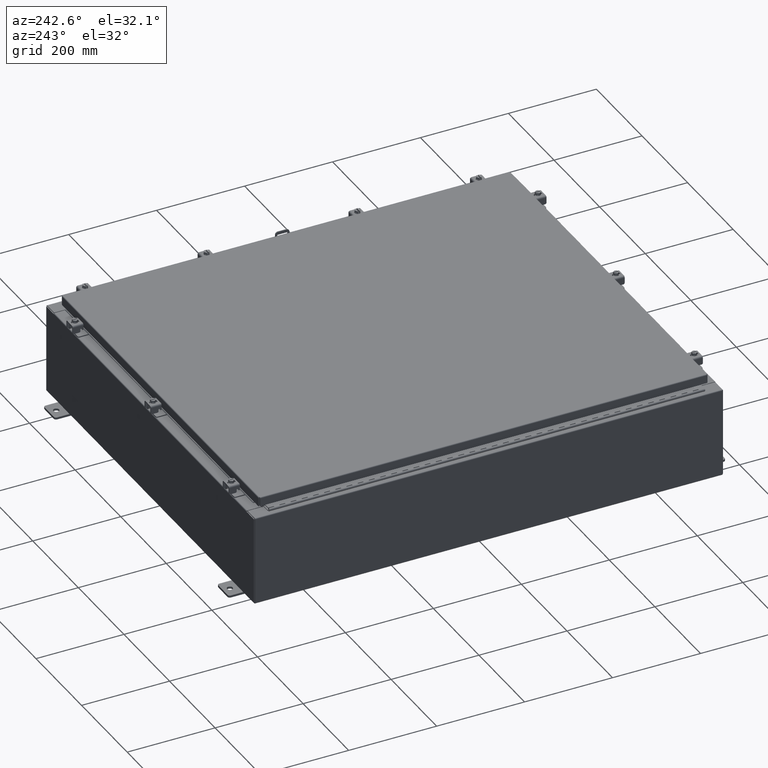
[diagram: clean part render]
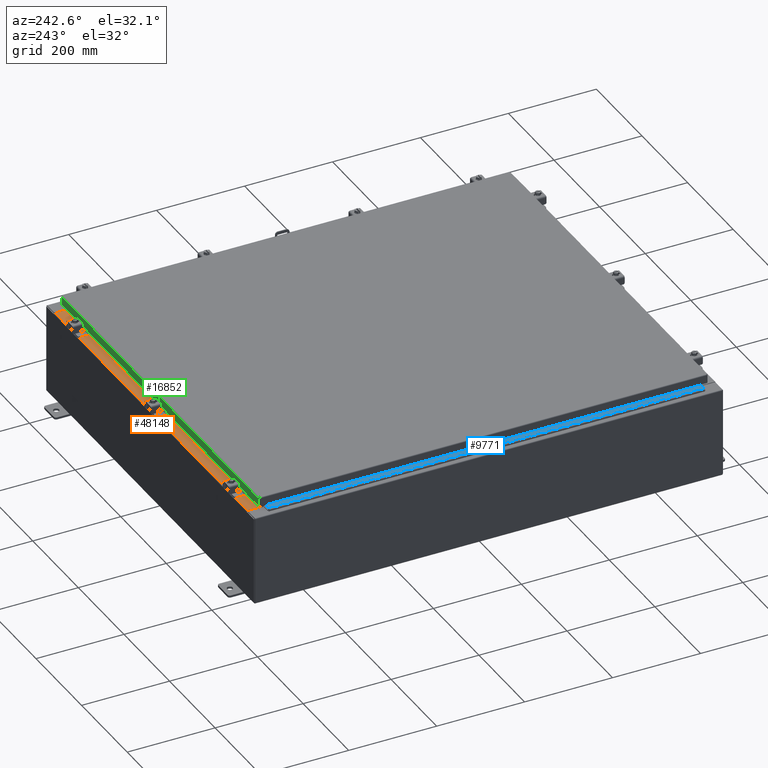
[diagram: same view with three faces highlighted in distinct colors, each labeled with its STEP entity id]
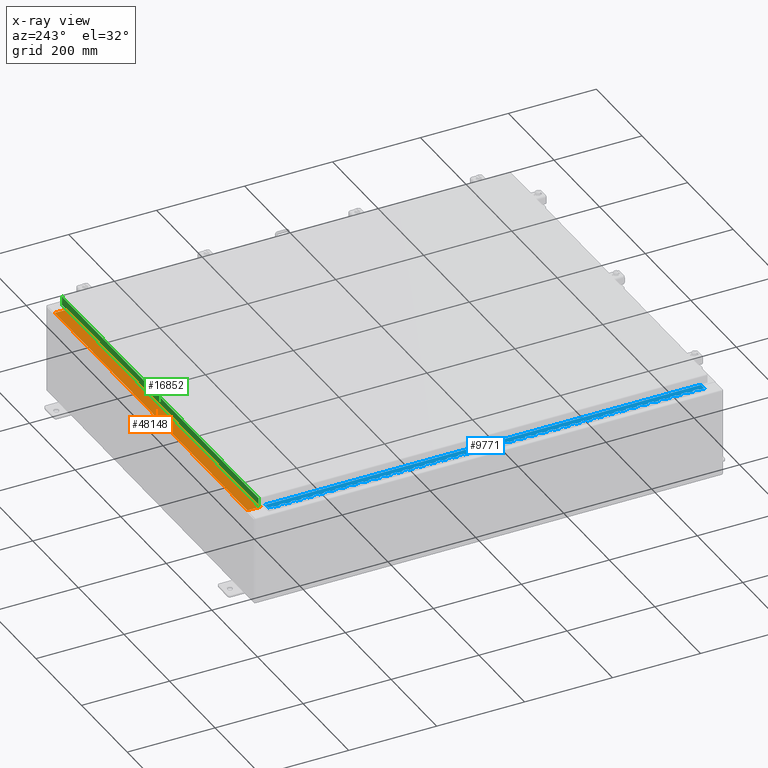
[diagram: x-ray of the same camera — body ghosted, the three highlighted faces saturated]
A machine part, auxiliary view with three faces highlighted in distinct colors.
The next image is the same camera in x-ray (body ghosted, the three faces saturated) — at least one of them is partly hidden behind the body in this view.
Their STEP definitions:

[orange] entity #48148 — the highlighted planar face has unit normal (0, 0, 1).
#107 = DIRECTION ( 'NONE',  ( 0.0000000000000000000, -1.000000000000000000, 3.566381192773190000E-015 ) ) ;
#6221 = AXIS2_PLACEMENT_3D ( 'NONE', #19647, #23584, #107 ) ;
#7450 = DIRECTION ( 'NONE',  ( -1.000000000000000000, 0.0000000000000000000, 0.0000000000000000000 ) ) ;
#7591 = LINE ( 'NONE', #8035, #48163 ) ;
#8035 = CARTESIAN_POINT ( 'NONE',  ( -2.880088610698934900E-018, -0.08770000000000026400, 4.000000000000000900 ) ) ;
#8636 = LINE ( 'NONE', #43902, #28322 ) ;
#10303 = VECTOR ( 'NONE', #7450, 39.37007874015748100 ) ;
#11124 = EDGE_LOOP ( 'NONE', ( #39850, #25400, #33424, #20005 ) ) ;
#14586 = EDGE_CURVE ( 'NONE', #18733, #41920, #17057, .T. ) ;
#16765 = VERTEX_POINT ( 'NONE', #47904 ) ;
#17057 = LINE ( 'NONE', #19277, #10303 ) ;
#18733 = VERTEX_POINT ( 'NONE', #34162 ) ;
#19277 = CARTESIAN_POINT ( 'NONE',  ( 16.63720000000000700, -1.287299999999999200, 4.000000000000004400 ) ) ;
#19647 = CARTESIAN_POINT ( 'NONE',  ( 0.0000000000000000000, 1.311287036958846300E-014, 4.000000000000000900 ) ) ;
#20005 = ORIENTED_EDGE ( 'NONE', *, *, #21320, .T. ) ;
#20342 = DIRECTION ( 'NONE',  ( -0.0000000000000000000, 1.000000000000000000, -3.566381192773190000E-015 ) ) ;
#21320 = EDGE_CURVE ( 'NONE', #16765, #21471, #7591, .T. ) ;
#21471 = VERTEX_POINT ( 'NONE', #32418 ) ;
#22380 = CARTESIAN_POINT ( 'NONE',  ( 16.63720000000000400, -1.300300000000001300, 4.000000000000004400 ) ) ;
#23584 = DIRECTION ( 'NONE',  ( 0.0000000000000000000, 3.566381192773190000E-015, 1.000000000000000000 ) ) ;
#24729 = FACE_OUTER_BOUND ( 'NONE', #11124, .T. ) ;
#25400 = ORIENTED_EDGE ( 'NONE', *, *, #14586, .F. ) ;
#27449 = CARTESIAN_POINT ( 'NONE',  ( -16.63719999999999600, -1.287299999999999200, 4.000000000000004400 ) ) ;
#28322 = VECTOR ( 'NONE', #20342, 39.37007874015748100 ) ;
#28526 = VECTOR ( 'NONE', #30129, 39.37007874015748100 ) ;
#28745 = EDGE_CURVE ( 'NONE', #16765, #18733, #49965, .T. ) ;
#30129 = DIRECTION ( 'NONE',  ( -0.0000000000000000000, -1.000000000000000000, 3.566381192773190000E-015 ) ) ;
#32418 = CARTESIAN_POINT ( 'NONE',  ( -16.63719999999999600, -0.08770000000000026400, 4.000000000000000900 ) ) ;
#33424 = ORIENTED_EDGE ( 'NONE', *, *, #28745, .F. ) ;
#34162 = CARTESIAN_POINT ( 'NONE',  ( 16.63720000000000400, -1.287299999999999200, 4.000000000000004400 ) ) ;
#39850 = ORIENTED_EDGE ( 'NONE', *, *, #40808, .F. ) ;
#40808 = EDGE_CURVE ( 'NONE', #41920, #21471, #8636, .T. ) ;
#41920 = VERTEX_POINT ( 'NONE', #27449 ) ;
#43203 = PLANE ( 'NONE',  #6221 ) ;
#43437 = DIRECTION ( 'NONE',  ( -1.000000000000000000, 3.284023746380717400E-017, -1.171208052571274300E-031 ) ) ;
#43902 = CARTESIAN_POINT ( 'NONE',  ( -16.63719999999999600, -0.07469999999999797600, 4.000000000000000900 ) ) ;
#47904 = CARTESIAN_POINT ( 'NONE',  ( 16.63720000000000700, -0.08770000000000026400, 4.000000000000000900 ) ) ;
#48148 = ADVANCED_FACE ( 'NONE', ( #24729 ), #43203, .T. ) ;
#48163 = VECTOR ( 'NONE', #43437, 39.37007874015748100 ) ;
#49965 = LINE ( 'NONE', #22380, #28526 ) ;

[blue] entity #9771 — the highlighted planar face has unit normal (-0, -0, 1).
#67 = CARTESIAN_POINT ( 'NONE',  ( -0.6869999999999976100, 0.6754999999999985500, -38.99999999999995700 ) ) ;
#100 = VERTEX_POINT ( 'NONE', #29878 ) ;
#106 = VERTEX_POINT ( 'NONE', #49465 ) ;
#110 = LINE ( 'NONE', #21033, #18476 ) ;
#132 = DIRECTION ( 'NONE',  ( -2.953051494888287800E-027, 9.506664171024828000E-028, 1.000000000000000000 ) ) ;
#160 = VECTOR ( 'NONE', #33789, 39.37007874015748100 ) ;
#163 = EDGE_CURVE ( 'NONE', #19987, #39632, #49960, .T. ) ;
#165 = ORIENTED_EDGE ( 'NONE', *, *, #39338, .F. ) ;
#169 = VECTOR ( 'NONE', #31670, 39.37007874015748100 ) ;
#187 = CARTESIAN_POINT ( 'NONE',  ( -0.6869999999999976100, 0.5504999999999989900, -18.99999999999997900 ) ) ;
#219 = CARTESIAN_POINT ( 'NONE',  ( -0.6869999999999976100, 0.6754999999999985500, -38.99999999999995700 ) ) ;
#242 = VERTEX_POINT ( 'NONE', #22963 ) ;
#330 = LINE ( 'NONE', #12147, #39645 ) ;
#354 = ORIENTED_EDGE ( 'NONE', *, *, #947, .F. ) ;
#369 = CARTESIAN_POINT ( 'NONE',  ( -0.6869999999999976100, 0.6754999999999985500, -23.99999999999997500 ) ) ;
#377 = CARTESIAN_POINT ( 'NONE',  ( -0.6869999999999976100, 0.6754999999999985500, -11.49999999999997900 ) ) ;
#440 = ORIENTED_EDGE ( 'NONE', *, *, #46547, .F. ) ;
#509 = ORIENTED_EDGE ( 'NONE', *, *, #37855, .F. ) ;
#517 = VERTEX_POINT ( 'NONE', #20730 ) ;
#548 = EDGE_CURVE ( 'NONE', #8685, #21381, #2586, .T. ) ;
#607 = VERTEX_POINT ( 'NONE', #45652 ) ;
#636 = CARTESIAN_POINT ( 'NONE',  ( -0.6869999999999976100, 0.5504999999999902200, -33.49999999999995700 ) ) ;
#639 = ORIENTED_EDGE ( 'NONE', *, *, #36520, .F. ) ;
#664 = VECTOR ( 'NONE', #3221, 39.37007874015748100 ) ;
#677 = CARTESIAN_POINT ( 'NONE',  ( -0.6869999999999976100, 0.8004999999999978800, -26.49999999999995700 ) ) ;
#695 = CARTESIAN_POINT ( 'NONE',  ( -0.6869999999999976100, 0.6754999999999985500, -26.99999999999997900 ) ) ;
#720 = ORIENTED_EDGE ( 'NONE', *, *, #36301, .F. ) ;
#737 = VERTEX_POINT ( 'NONE', #39517 ) ;
#740 = EDGE_CURVE ( 'NONE', #32604, #21567, #3181, .T. ) ;
#765 = VERTEX_POINT ( 'NONE', #377 ) ;
#767 = CARTESIAN_POINT ( 'NONE',  ( -0.6869999999999976100, 0.8005000000000001000, -14.99999999999997700 ) ) ;
#795 = ORIENTED_EDGE ( 'NONE', *, *, #27965, .F. ) ;
#874 = DIRECTION ( 'NONE',  ( 2.953051494888287800E-027, -9.506664171024828000E-028, -1.000000000000000000 ) ) ;
#939 = LINE ( 'NONE', #11958, #28587 ) ;
#947 = EDGE_CURVE ( 'NONE', #242, #16377, #45571, .T. ) ;
#998 = CARTESIAN_POINT ( 'NONE',  ( -0.6869999999999976100, 0.6754999999999985500, -38.99999999999995700 ) ) ;
#1008 = LINE ( 'NONE', #44311, #41566 ) ;
#1147 = LINE ( 'NONE', #677, #41711 ) ;
#1153 = VERTEX_POINT ( 'NONE', #50122 ) ;
#1154 = VERTEX_POINT ( 'NONE', #38402 ) ;
#1163 = VECTOR ( 'NONE', #34100, 39.37007874015748100 ) ;
#1206 = VECTOR ( 'NONE', #27226, 39.37007874015748100 ) ;
#1255 = ORIENTED_EDGE ( 'NONE', *, *, #43976, .F. ) ;
#1290 = VECTOR ( 'NONE', #8086, 39.37007874015748100 ) ;
#1373 = ORIENTED_EDGE ( 'NONE', *, *, #26450, .F. ) ;
#1393 = CARTESIAN_POINT ( 'NONE',  ( -0.6869999999999976100, 0.8005000000000001000, -30.49999999999996400 ) ) ;
#1467 = VECTOR ( 'NONE', #38852, 39.37007874015748100 ) ;
#1502 = CARTESIAN_POINT ( 'NONE',  ( -0.6869999999999976100, 0.6755000000000007700, -2.500000000000000000 ) ) ;
#1504 = EDGE_CURVE ( 'NONE', #10671, #46955, #16410, .T. ) ;
#1554 = LINE ( 'NONE', #20446, #42119 ) ;
#1581 = DIRECTION ( 'NONE',  ( 3.389037039080736100E-015, 1.000000000000000000, 9.506597110605441700E-028 ) ) ;
#1657 = CARTESIAN_POINT ( 'NONE',  ( -0.6869999999999976100, 0.6754999999999985500, -38.99999999999995700 ) ) ;
#1726 = VECTOR ( 'NONE', #48612, 39.37007874015748100 ) ;
#1769 = LINE ( 'NONE', #7016, #10965 ) ;
#1859 = DIRECTION ( 'NONE',  ( -3.389037039080736100E-015, -1.000000000000000000, -9.506597110605441700E-028 ) ) ;
#1890 = EDGE_CURVE ( 'NONE', #42015, #16360, #42220, .T. ) ;
#1904 = CARTESIAN_POINT ( 'NONE',  ( -0.6869999999999976100, 0.6754999999999985500, -38.99999999999995700 ) ) ;
#1924 = VECTOR ( 'NONE', #39519, 39.37007874015748100 ) ;
#1957 = VERTEX_POINT ( 'NONE', #47288 ) ;
#1997 = VERTEX_POINT ( 'NONE', #13047 ) ;
#2078 = CARTESIAN_POINT ( 'NONE',  ( -0.6869999999999976100, 0.6754999999999985500, -38.99999999999995700 ) ) ;
#2112 = LINE ( 'NONE', #41496, #20528 ) ;
#2166 = EDGE_CURVE ( 'NONE', #34307, #9973, #10203, .T. ) ;
#2183 = ORIENTED_EDGE ( 'NONE', *, *, #21524, .F. ) ;
#2241 = EDGE_CURVE ( 'NONE', #44918, #14323, #16953, .T. ) ;
#2250 = ORIENTED_EDGE ( 'NONE', *, *, #6847, .F. ) ;
#2257 = CARTESIAN_POINT ( 'NONE',  ( -0.6869999999999965000, 0.5504999999999989900, -24.99999999999995400 ) ) ;
#2307 = ORIENTED_EDGE ( 'NONE', *, *, #41742, .T. ) ;
#2389 = VECTOR ( 'NONE', #43093, 39.37007874015748100 ) ;
#2443 = VERTEX_POINT ( 'NONE', #187 ) ;
#2497 = VERTEX_POINT ( 'NONE', #12154 ) ;
#2586 = LINE ( 'NONE', #9897, #15458 ) ;
#2595 = DIRECTION ( 'NONE',  ( 3.369016658928410800E-015, 1.000000000000000000, 9.506644107886776900E-028 ) ) ;
#2650 = DIRECTION ( 'NONE',  ( 3.369016658928410400E-015, 1.000000000000000000, 9.506644107886776900E-028 ) ) ;
#2714 = CARTESIAN_POINT ( 'NONE',  ( -0.6869999999999976100, 0.5504999999999989900, -1.500000000000000900 ) ) ;
#2713 = CARTESIAN_POINT ( 'NONE',  ( -0.6869999999999976100, 0.6754999999999985500, -38.99999999999995700 ) ) ;
#2766 = CARTESIAN_POINT ( 'NONE',  ( -0.6869999999999976100, 0.5504999999999902200, -28.49999999999995700 ) ) ;
#2866 = VECTOR ( 'NONE', #25446, 39.37007874015748100 ) ;
#2953 = LINE ( 'NONE', #11098, #43527 ) ;
#2965 = ORIENTED_EDGE ( 'NONE', *, *, #44619, .F. ) ;
#2975 = CARTESIAN_POINT ( 'NONE',  ( -0.6869999999999976100, 0.8005000000000001000, -5.000000000000000000 ) ) ;
#2991 = CARTESIAN_POINT ( 'NONE',  ( -0.6869999999999987200, 0.5504999999999989900, -22.49999999999995700 ) ) ;
#3013 = VERTEX_POINT ( 'NONE', #8000 ) ;
#3025 = DIRECTION ( 'NONE',  ( -3.389037039080736100E-015, -1.000000000000000000, -9.506597110605441700E-028 ) ) ;
#3028 = EDGE_CURVE ( 'NONE', #1957, #43301, #35957, .T. ) ;
#3033 = VERTEX_POINT ( 'NONE', #4434 ) ;
#3039 = CARTESIAN_POINT ( 'NONE',  ( -0.6869999999999976100, 0.6754999999999985500, -6.999999999999996400 ) ) ;
#3056 = VECTOR ( 'NONE', #45799, 39.37007874015748100 ) ;
#3117 = VECTOR ( 'NONE', #48018, 39.37007874015748100 ) ;
#3181 = LINE ( 'NONE', #27665, #22813 ) ;
#3221 = DIRECTION ( 'NONE',  ( 2.953051494888287800E-027, -9.506664171024828000E-028, -1.000000000000000000 ) ) ;
#3243 = EDGE_CURVE ( 'NONE', #23718, #15295, #8892, .T. ) ;
#3348 = CARTESIAN_POINT ( 'NONE',  ( -0.6869999999999965000, 0.8005000000000001000, -31.99999999999995700 ) ) ;
#3361 = ORIENTED_EDGE ( 'NONE', *, *, #39086, .F. ) ;
#3372 = VECTOR ( 'NONE', #23016, 39.37007874015748100 ) ;
#3378 = ORIENTED_EDGE ( 'NONE', *, *, #14320, .F. ) ;
#3645 = LINE ( 'NONE', #41323, #24466 ) ;
#3675 = VECTOR ( 'NONE', #39327, 39.37007874015748100 ) ;
#3700 = CARTESIAN_POINT ( 'NONE',  ( -0.6869999999999976100, 0.8005000000000001000, -3.000000000000001800 ) ) ;
#3792 = CARTESIAN_POINT ( 'NONE',  ( -0.6869999999999976100, 0.6754999999999985500, -29.49999999999996100 ) ) ;
#3805 = VERTEX_POINT ( 'NONE', #36017 ) ;
#3807 = ORIENTED_EDGE ( 'NONE', *, *, #34383, .F. ) ;
#3835 = EDGE_CURVE ( 'NONE', #8222, #46415, #16283, .T. ) ;
#3894 = VECTOR ( 'NONE', #24657, 39.37007874015748100 ) ;
#3940 = VERTEX_POINT ( 'NONE', #1502 ) ;
#4079 = VECTOR ( 'NONE', #31980, 39.37007874015748100 ) ;
#4159 = VECTOR ( 'NONE', #45446, 39.37007874015748100 ) ;
#4160 = CARTESIAN_POINT ( 'NONE',  ( -0.6869999999999965000, 0.5505000000000011000, -15.49999999999997900 ) ) ;
#4214 = LINE ( 'NONE', #26724, #33059 ) ;
#4258 = ORIENTED_EDGE ( 'NONE', *, *, #11960, .T. ) ;
#4290 = CARTESIAN_POINT ( 'NONE',  ( -0.6869999999999976100, 0.5504999999999902200, -5.999999999999997300 ) ) ;
#4298 = ORIENTED_EDGE ( 'NONE', *, *, #24101, .T. ) ;
#4358 = CARTESIAN_POINT ( 'NONE',  ( -0.6869999999999987200, 0.5504999999999989900, -36.49999999999995700 ) ) ;
#4434 = CARTESIAN_POINT ( 'NONE',  ( -0.6869999999999976100, 0.6755000000000007700, -17.49999999999997500 ) ) ;
#4452 = VECTOR ( 'NONE', #46330, 39.37007874015748100 ) ;
#4474 = CARTESIAN_POINT ( 'NONE',  ( -0.6869999999999976100, 0.5504999999999989900, -14.49999999999997700 ) ) ;
#4527 = CARTESIAN_POINT ( 'NONE',  ( -0.6869999999999976100, 0.8004999999999957700, -30.99999999999996100 ) ) ;
#4535 = CARTESIAN_POINT ( 'NONE',  ( -0.6869999999999987200, 0.5504999999999902200, -13.49999999999997900 ) ) ;
#4538 = VECTOR ( 'NONE', #49147, 39.37007874015748100 ) ;
#4557 = LINE ( 'NONE', #35954, #43875 ) ;
#4568 = VECTOR ( 'NONE', #6674, 39.37007874015748100 ) ;
#4588 = ORIENTED_EDGE ( 'NONE', *, *, #10086, .F. ) ;
#4605 = ORIENTED_EDGE ( 'NONE', *, *, #18960, .T. ) ;
#4639 = VERTEX_POINT ( 'NONE', #37455 ) ;
#4712 = EDGE_CURVE ( 'NONE', #14663, #7691, #40809, .T. ) ;
#4740 = VECTOR ( 'NONE', #41693, 39.37007874015748100 ) ;
#4818 = DIRECTION ( 'NONE',  ( 3.389037039080736100E-015, 1.000000000000000000, 9.506597110605441700E-028 ) ) ;
#4847 = DIRECTION ( 'NONE',  ( 3.389037039080736100E-015, 1.000000000000000000, 9.506597110605441700E-028 ) ) ;
#4892 = CARTESIAN_POINT ( 'NONE',  ( -0.6869999999999976100, 0.6754999999999985500, -36.99999999999995700 ) ) ;
#4942 = VECTOR ( 'NONE', #8292, 39.37007874015748100 ) ;
#4961 = CARTESIAN_POINT ( 'NONE',  ( -0.6869999999999976100, 0.8004999999999957700, -35.99999999999996400 ) ) ;
#5112 = EDGE_CURVE ( 'NONE', #29770, #25762, #23525, .T. ) ;
#5139 = DIRECTION ( 'NONE',  ( 2.953051494888287800E-027, -9.506664171024828000E-028, -1.000000000000000000 ) ) ;
#5251 = CARTESIAN_POINT ( 'NONE',  ( -0.6869999999999976100, 0.6755000000000007700, -5.000000000000000000 ) ) ;
#5303 = ORIENTED_EDGE ( 'NONE', *, *, #30860, .F. ) ;
#5305 = LINE ( 'NONE', #28762, #35413 ) ;
#5361 = ORIENTED_EDGE ( 'NONE', *, *, #5990, .F. ) ;
#5367 = EDGE_CURVE ( 'NONE', #18211, #48962, #42571, .T. ) ;
#5417 = ORIENTED_EDGE ( 'NONE', *, *, #24034, .F. ) ;
#5489 = CARTESIAN_POINT ( 'NONE',  ( -0.6869999999999976100, 0.5504999999999989900, -24.49999999999995400 ) ) ;
#5517 = CARTESIAN_POINT ( 'NONE',  ( -0.6869999999999976100, 0.8004999999999957700, -20.99999999999997900 ) ) ;
#5553 = DIRECTION ( 'NONE',  ( 3.389037039080736100E-015, 1.000000000000000000, 9.506597110605441700E-028 ) ) ;
#5558 = EDGE_CURVE ( 'NONE', #24769, #11222, #22268, .T. ) ;
#5579 = VERTEX_POINT ( 'NONE', #27893 ) ;
#5628 = EDGE_CURVE ( 'NONE', #12369, #46955, #38209, .T. ) ;
#5688 = VERTEX_POINT ( 'NONE', #36447 ) ;
#5862 = VECTOR ( 'NONE', #8344, 39.37007874015748100 ) ;
#5887 = LINE ( 'NONE', #8427, #25488 ) ;
#5932 = VECTOR ( 'NONE', #48512, 39.37007874015748100 ) ;
#5963 = VERTEX_POINT ( 'NONE', #34044 ) ;
#5990 = EDGE_CURVE ( 'NONE', #23804, #5688, #23432, .T. ) ;
#5993 = DIRECTION ( 'NONE',  ( -3.389037039080736100E-015, -1.000000000000000000, -9.506597110605441700E-028 ) ) ;
#6010 = VECTOR ( 'NONE', #24963, 39.37007874015748100 ) ;
#6143 = DIRECTION ( 'NONE',  ( 3.389037039080736100E-015, 1.000000000000000000, 9.506597110605441700E-028 ) ) ;
#6212 = EDGE_CURVE ( 'NONE', #10803, #16690, #44955, .T. ) ;
#6231 = ORIENTED_EDGE ( 'NONE', *, *, #740, .F. ) ;
#6331 = VECTOR ( 'NONE', #21484, 39.37007874015748100 ) ;
#6419 = VERTEX_POINT ( 'NONE', #29451 ) ;
#6426 = FACE_OUTER_BOUND ( 'NONE', #17966, .T. ) ;
#6428 = CARTESIAN_POINT ( 'NONE',  ( -0.6869999999999976100, 0.5504999999999989900, -23.99999999999995400 ) ) ;
#6519 = VERTEX_POINT ( 'NONE', #33919 ) ;
#6527 = CARTESIAN_POINT ( 'NONE',  ( -0.6869999999999976100, 0.6754999999999985500, -38.99999999999995700 ) ) ;
#6541 = ORIENTED_EDGE ( 'NONE', *, *, #28876, .F. ) ;
#6609 = VERTEX_POINT ( 'NONE', #46283 ) ;
#6627 = CARTESIAN_POINT ( 'NONE',  ( -0.6869999999999976100, 0.8004999999999957700, -6.000000000000001800 ) ) ;
#6674 = DIRECTION ( 'NONE',  ( -2.953051494888287800E-027, 9.506664171024828000E-028, 1.000000000000000000 ) ) ;
#6713 = CARTESIAN_POINT ( 'NONE',  ( -0.6869999999999987200, 0.5505000000000011000, -30.49999999999995400 ) ) ;
#6768 = CARTESIAN_POINT ( 'NONE',  ( -0.6869999999999976100, 0.5504999999999989900, -37.49999999999995000 ) ) ;
#6847 = EDGE_CURVE ( 'NONE', #42888, #14971, #25784, .T. ) ;
#6855 = CARTESIAN_POINT ( 'NONE',  ( -0.6869999999999987200, 0.5504999999999989900, -12.49999999999997900 ) ) ;
#6910 = CARTESIAN_POINT ( 'NONE',  ( -0.6869999999999976100, 0.6754999999999985500, -31.49999999999995700 ) ) ;
#6918 = CARTESIAN_POINT ( 'NONE',  ( -0.6869999999999965000, 0.6755000000000007700, -0.4999999999999973900 ) ) ;
#6949 = EDGE_CURVE ( 'NONE', #3940, #44268, #22116, .T. ) ;
#7016 = CARTESIAN_POINT ( 'NONE',  ( -0.6869999999999976100, 0.6754999999999985500, -38.99999999999995700 ) ) ;
#7050 = CARTESIAN_POINT ( 'NONE',  ( -0.6869999999999976100, 0.6754999999999985500, -1.500000000000000900 ) ) ;
#7148 = CARTESIAN_POINT ( 'NONE',  ( -0.6869999999999976100, 0.8005000000000001000, -25.49999999999996400 ) ) ;
#7163 = EDGE_CURVE ( 'NONE', #3805, #12190, #14700, .T. ) ;
#7178 = EDGE_CURVE ( 'NONE', #7952, #39632, #44868, .T. ) ;
#7265 = ORIENTED_EDGE ( 'NONE', *, *, #16395, .F. ) ;
#7267 = DIRECTION ( 'NONE',  ( 3.389037039080736100E-015, 1.000000000000000000, 9.506597110605441700E-028 ) ) ;
#7273 = EDGE_CURVE ( 'NONE', #47602, #11338, #41165, .T. ) ;
#7342 = VECTOR ( 'NONE', #19604, 39.37007874015748100 ) ;
#7350 = VECTOR ( 'NONE', #39523, 39.37007874015748100 ) ;
#7415 = EDGE_CURVE ( 'NONE', #10803, #242, #25735, .T. ) ;
#7434 = ORIENTED_EDGE ( 'NONE', *, *, #36580, .T. ) ;
#7452 = EDGE_CURVE ( 'NONE', #12305, #29350, #24495, .T. ) ;
#7550 = VECTOR ( 'NONE', #35706, 39.37007874015748100 ) ;
#7572 = CARTESIAN_POINT ( 'NONE',  ( -0.6869999999999976100, 0.6754999999999985500, -14.49999999999997700 ) ) ;
#7691 = VERTEX_POINT ( 'NONE', #29005 ) ;
#7700 = VERTEX_POINT ( 'NONE', #48744 ) ;
#7753 = CARTESIAN_POINT ( 'NONE',  ( -0.6870000000000019400, -0.6245000000000111600, -38.99999999999995700 ) ) ;
#7779 = VECTOR ( 'NONE', #42378, 39.37007874015748100 ) ;
#7952 = VERTEX_POINT ( 'NONE', #23218 ) ;
#7955 = VERTEX_POINT ( 'NONE', #31145 ) ;
#8000 = CARTESIAN_POINT ( 'NONE',  ( -0.6869999999999976100, 0.6754999999999985500, -4.500000000000002700 ) ) ;
#8027 = VECTOR ( 'NONE', #27597, 39.37007874015748100 ) ;
#8034 = VERTEX_POINT ( 'NONE', #35610 ) ;
#8070 = CARTESIAN_POINT ( 'NONE',  ( -0.6869999999999976100, 0.6754999999999985500, -38.99999999999995700 ) ) ;
#8086 = DIRECTION ( 'NONE',  ( -2.953051494888287800E-027, 9.506664171024828000E-028, 1.000000000000000000 ) ) ;
#8135 = CARTESIAN_POINT ( 'NONE',  ( -0.6869999999999976100, 0.6754999999999985500, -38.99999999999995700 ) ) ;
#8169 = CARTESIAN_POINT ( 'NONE',  ( -0.6869999999999976100, 0.6754999999999985500, -38.99999999999995700 ) ) ;
#8182 = VECTOR ( 'NONE', #48566, 39.37007874015748100 ) ;
#8222 = VERTEX_POINT ( 'NONE', #33007 ) ;
#8229 = EDGE_CURVE ( 'NONE', #17066, #47569, #13922, .T. ) ;
#8280 = VECTOR ( 'NONE', #26624, 39.37007874015748100 ) ;
#8283 = CARTESIAN_POINT ( 'NONE',  ( -0.6869999999999976100, 0.6754999999999985500, -13.49999999999997900 ) ) ;
#8292 = DIRECTION ( 'NONE',  ( 3.389037039080736100E-015, 1.000000000000000000, 9.506597110605441700E-028 ) ) ;
#8308 = EDGE_CURVE ( 'NONE', #18376, #23423, #20703, .T. ) ;
#8344 = DIRECTION ( 'NONE',  ( 2.953051494888287800E-027, -9.506664171024828000E-028, -1.000000000000000000 ) ) ;
#8352 = EDGE_CURVE ( 'NONE', #17585, #16360, #29923, .T. ) ;
#8354 = VERTEX_POINT ( 'NONE', #10122 ) ;
#8423 = CARTESIAN_POINT ( 'NONE',  ( -0.6869999999999976100, 0.8005000000000001000, -35.49999999999996400 ) ) ;
#8427 = CARTESIAN_POINT ( 'NONE',  ( -0.6869999999999965000, 0.5504999999999989900, -34.49999999999995000 ) ) ;
#8472 = LINE ( 'NONE', #33642, #37330 ) ;
#8553 = VECTOR ( 'NONE', #24225, 39.37007874015748100 ) ;
#8569 = ORIENTED_EDGE ( 'NONE', *, *, #50725, .F. ) ;
#8632 = LINE ( 'NONE', #26397, #49204 ) ;
#8685 = VERTEX_POINT ( 'NONE', #47730 ) ;
#8752 = EDGE_CURVE ( 'NONE', #20181, #32883, #1008, .T. ) ;
#8763 = VERTEX_POINT ( 'NONE', #16946 ) ;
#8849 = CARTESIAN_POINT ( 'NONE',  ( -0.6869999999999987200, 0.5505000000000011000, -12.99999999999997700 ) ) ;
#8866 = LINE ( 'NONE', #20807, #28551 ) ;
#8892 = LINE ( 'NONE', #44769, #39003 ) ;
#8977 = CARTESIAN_POINT ( 'NONE',  ( -0.6869999999999976100, 0.5504999999999989900, -14.49999999999997700 ) ) ;
#8985 = VECTOR ( 'NONE', #22486, 39.37007874015748100 ) ;
#9004 = EDGE_CURVE ( 'NONE', #13364, #42042, #31694, .T. ) ;
#9025 = LINE ( 'NONE', #17775, #18212 ) ;
#9122 = CARTESIAN_POINT ( 'NONE',  ( -0.6869999999999976100, 0.6755000000000007700, -27.49999999999997900 ) ) ;
#9156 = EDGE_CURVE ( 'NONE', #43533, #50475, #24272, .T. ) ;
#9157 = VECTOR ( 'NONE', #36289, 39.37007874015748100 ) ;
#9264 = LINE ( 'NONE', #39278, #8027 ) ;
#9319 = ORIENTED_EDGE ( 'NONE', *, *, #5628, .F. ) ;
#9324 = CARTESIAN_POINT ( 'NONE',  ( -0.6869999999999976100, 0.6755000000000007700, -8.000000000000000000 ) ) ;
#9335 = DIRECTION ( 'NONE',  ( -3.389037039080736100E-015, -1.000000000000000000, -9.506597110605441700E-028 ) ) ;
#9416 = VERTEX_POINT ( 'NONE', #27754 ) ;
#9420 = CARTESIAN_POINT ( 'NONE',  ( -0.6869999999999987200, 0.5504999999999902200, -30.99999999999995400 ) ) ;
#9428 = VECTOR ( 'NONE', #14266, 39.37007874015748100 ) ;
#9445 = EDGE_CURVE ( 'NONE', #23592, #43533, #42115, .T. ) ;
#9484 = ORIENTED_EDGE ( 'NONE', *, *, #41443, .F. ) ;
#9523 = CARTESIAN_POINT ( 'NONE',  ( -0.6869999999999976100, 0.8005000000000001000, -15.49999999999997900 ) ) ;
#9606 = DIRECTION ( 'NONE',  ( 2.953051494888287800E-027, -9.506664171024828000E-028, -1.000000000000000000 ) ) ;
#9609 = VERTEX_POINT ( 'NONE', #32714 ) ;
#9767 = CARTESIAN_POINT ( 'NONE',  ( -0.6869999999999976100, 0.6754999999999985500, -38.99999999999995700 ) ) ;
#9771 = ADVANCED_FACE ( 'NONE', ( #6426 ), #49541, .T. ) ;
#9790 = EDGE_CURVE ( 'NONE', #50058, #14663, #27309, .T. ) ;
#9818 = VECTOR ( 'NONE', #21999, 39.37007874015748100 ) ;
#9830 = VECTOR ( 'NONE', #11089, 39.37007874015748100 ) ;
#9834 = ORIENTED_EDGE ( 'NONE', *, *, #28461, .F. ) ;
#9879 = ORIENTED_EDGE ( 'NONE', *, *, #20564, .F. ) ;
#9897 = CARTESIAN_POINT ( 'NONE',  ( -0.6869999999999976100, 0.8005000000000001000, -7.499999999999998200 ) ) ;
#9973 = VERTEX_POINT ( 'NONE', #35108 ) ;
#9990 = ORIENTED_EDGE ( 'NONE', *, *, #42470, .F. ) ;
#10086 = EDGE_CURVE ( 'NONE', #18444, #26855, #33425, .T. ) ;
#10122 = CARTESIAN_POINT ( 'NONE',  ( -0.6869999999999976100, 0.6754999999999985500, -36.49999999999995700 ) ) ;
#10153 = ORIENTED_EDGE ( 'NONE', *, *, #23838, .T. ) ;
#10203 = LINE ( 'NONE', #2078, #40343 ) ;
#10213 = VECTOR ( 'NONE', #16180, 39.37007874015748100 ) ;
#10225 = LINE ( 'NONE', #34471, #20694 ) ;
#10235 = VECTOR ( 'NONE', #29553, 39.37007874015748100 ) ;
#10280 = LINE ( 'NONE', #1904, #48413 ) ;
#10291 = LINE ( 'NONE', #33709, #50901 ) ;
#10293 = CARTESIAN_POINT ( 'NONE',  ( -0.6869999999999987200, 0.5504999999999989900, -16.49999999999997900 ) ) ;
#10328 = DIRECTION ( 'NONE',  ( -3.389037039080736100E-015, -1.000000000000000000, -9.506597110605441700E-028 ) ) ;
#10372 = VECTOR ( 'NONE', #16532, 39.37007874015748100 ) ;
#10424 = CARTESIAN_POINT ( 'NONE',  ( -0.6869999999999976100, 0.5504999999999902200, -18.49999999999997900 ) ) ;
#10572 = VERTEX_POINT ( 'NONE', #22975 ) ;
#10653 = DIRECTION ( 'NONE',  ( -3.389037039080736100E-015, -1.000000000000000000, -9.506597110605441700E-028 ) ) ;
#10671 = VERTEX_POINT ( 'NONE', #39492 ) ;
#10722 = EDGE_CURVE ( 'NONE', #43192, #12369, #40140, .T. ) ;
#10803 = VERTEX_POINT ( 'NONE', #32428 ) ;
#10810 = EDGE_CURVE ( 'NONE', #17585, #10572, #14278, .T. ) ;
#10840 = ORIENTED_EDGE ( 'NONE', *, *, #3028, .F. ) ;
#10846 = VECTOR ( 'NONE', #39036, 39.37007874015748100 ) ;
#10853 = DIRECTION ( 'NONE',  ( -3.389037039080736100E-015, -1.000000000000000000, -9.506597110605441700E-028 ) ) ;
#10873 = CARTESIAN_POINT ( 'NONE',  ( -0.6869999999999965000, 0.8005000000000001000, -21.99999999999997900 ) ) ;
#10877 = EDGE_CURVE ( 'NONE', #26944, #34109, #32737, .T. ) ;
#10915 = CARTESIAN_POINT ( 'NONE',  ( -0.6869999999999976100, 0.5505000000000011000, -5.499999999999997300 ) ) ;
#10965 = VECTOR ( 'NONE', #30567, 39.37007874015748100 ) ;
#10989 = DIRECTION ( 'NONE',  ( -3.389037039080736100E-015, -1.000000000000000000, -9.506597110605441700E-028 ) ) ;
#11059 = CARTESIAN_POINT ( 'NONE',  ( -0.6869999999999965000, 0.8005000000000001000, -17.99999999999997500 ) ) ;
#11066 = LINE ( 'NONE', #26712, #664 ) ;
#11089 = DIRECTION ( 'NONE',  ( -3.389037039080736100E-015, -1.000000000000000000, -9.506597110605441700E-028 ) ) ;
#11098 = CARTESIAN_POINT ( 'NONE',  ( -0.6869999999999987200, 0.5504999999999989900, -32.49999999999995000 ) ) ;
#11100 = VERTEX_POINT ( 'NONE', #46676 ) ;
#11154 = VERTEX_POINT ( 'NONE', #47183 ) ;
#11175 = CARTESIAN_POINT ( 'NONE',  ( -0.6869999999999987200, 0.5504999999999989900, -17.49999999999997500 ) ) ;
#11218 = VERTEX_POINT ( 'NONE', #39621 ) ;
#11222 = VERTEX_POINT ( 'NONE', #47508 ) ;
#11238 = VECTOR ( 'NONE', #26076, 39.37007874015748100 ) ;
#11275 = ORIENTED_EDGE ( 'NONE', *, *, #18544, .F. ) ;
#11338 = VERTEX_POINT ( 'NONE', #8849 ) ;
#11414 = VECTOR ( 'NONE', #30164, 39.37007874015748100 ) ;
#11520 = LINE ( 'NONE', #5517, #50893 ) ;
#11581 = ORIENTED_EDGE ( 'NONE', *, *, #20629, .F. ) ;
#11661 = EDGE_CURVE ( 'NONE', #517, #15758, #13052, .T. ) ;
#11717 = LINE ( 'NONE', #23693, #1290 ) ;
#11745 = VECTOR ( 'NONE', #34628, 39.37007874015748100 ) ;
#11796 = CARTESIAN_POINT ( 'NONE',  ( -0.6869999999999976100, 0.6754999999999985500, -38.99999999999995700 ) ) ;
#11800 = LINE ( 'NONE', #17956, #160 ) ;
#11858 = CARTESIAN_POINT ( 'NONE',  ( -0.6869999999999976100, 0.6755000000000007700, 0.0000000000000000000 ) ) ;
#11958 = CARTESIAN_POINT ( 'NONE',  ( -0.6869999999999987200, 0.5504999999999989900, -11.49999999999997900 ) ) ;
#11960 = EDGE_CURVE ( 'NONE', #3940, #11100, #30881, .T. ) ;
#12017 = LINE ( 'NONE', #16496, #40926 ) ;
#12086 = DIRECTION ( 'NONE',  ( 3.389037039080736100E-015, 1.000000000000000000, 9.506597110605441700E-028 ) ) ;
#12147 = CARTESIAN_POINT ( 'NONE',  ( -0.6869999999999965000, 0.8004999999999957700, -13.49999999999997900 ) ) ;
#12154 = CARTESIAN_POINT ( 'NONE',  ( -0.6869999999999987200, 0.5505000000000011000, -35.49999999999995700 ) ) ;
#12157 = LINE ( 'NONE', #20953, #1726 ) ;
#12190 = VERTEX_POINT ( 'NONE', #47205 ) ;
#12218 = LINE ( 'NONE', #219, #14667 ) ;
#12262 = LINE ( 'NONE', #17303, #43652 ) ;
#12304 = EDGE_CURVE ( 'NONE', #8354, #24190, #48672, .T. ) ;
#12305 = VERTEX_POINT ( 'NONE', #39814 ) ;
#12369 = VERTEX_POINT ( 'NONE', #40481 ) ;
#12371 = DIRECTION ( 'NONE',  ( 2.953051494888287800E-027, -9.506664171024828000E-028, -1.000000000000000000 ) ) ;
#12392 = CARTESIAN_POINT ( 'NONE',  ( -0.6869999999999976100, 0.5505000000000011000, -20.49999999999995700 ) ) ;
#12477 = DIRECTION ( 'NONE',  ( -3.389037039080736100E-015, -1.000000000000000000, -9.506597110605441700E-028 ) ) ;
#12478 = CARTESIAN_POINT ( 'NONE',  ( -0.6869999999999976100, 0.5505000000000011000, -20.49999999999995700 ) ) ;
#12521 = ORIENTED_EDGE ( 'NONE', *, *, #16881, .T. ) ;
#12526 = DIRECTION ( 'NONE',  ( 3.389037039080736100E-015, 1.000000000000000000, 9.506597110605441700E-028 ) ) ;
#12578 = CARTESIAN_POINT ( 'NONE',  ( -0.6869999999999976100, 0.6754999999999985500, -38.99999999999995700 ) ) ;
#12599 = VERTEX_POINT ( 'NONE', #26162 ) ;
#12631 = CARTESIAN_POINT ( 'NONE',  ( -0.6869999999999976100, 0.8005000000000001000, -11.99999999999997700 ) ) ;
#12675 = EDGE_CURVE ( 'NONE', #7700, #1153, #30196, .T. ) ;
#12714 = CARTESIAN_POINT ( 'NONE',  ( -0.6869999999999976100, 0.6755000000000007700, -34.99999999999995700 ) ) ;
#12775 = VERTEX_POINT ( 'NONE', #23417 ) ;
#12789 = VERTEX_POINT ( 'NONE', #35302 ) ;
#12804 = LINE ( 'NONE', #30905, #2389 ) ;
#12816 = CARTESIAN_POINT ( 'NONE',  ( -0.6869999999999987200, 0.5504999999999989900, -34.99999999999995000 ) ) ;
#12819 = CARTESIAN_POINT ( 'NONE',  ( -0.6869999999999965000, 0.8004999999999957700, -3.499999999999999100 ) ) ;
#13047 = CARTESIAN_POINT ( 'NONE',  ( -0.6869999999999932800, 0.6754999999999985500, -19.49999999999997900 ) ) ;
#13052 = LINE ( 'NONE', #2991, #32744 ) ;
#13063 = EDGE_CURVE ( 'NONE', #8685, #24285, #32596, .T. ) ;
#13092 = DIRECTION ( 'NONE',  ( -3.389037039080736100E-015, -1.000000000000000000, -9.506597110605441700E-028 ) ) ;
#13115 = CARTESIAN_POINT ( 'NONE',  ( -0.6869999999999976100, 0.6754999999999985500, -38.99999999999995700 ) ) ;
#13116 = ORIENTED_EDGE ( 'NONE', *, *, #17252, .F. ) ;
#13146 = CARTESIAN_POINT ( 'NONE',  ( -0.6869999999999953900, 0.8004999999999957700, -18.49999999999997900 ) ) ;
#13230 = LINE ( 'NONE', #46807, #32928 ) ;
#13305 = ORIENTED_EDGE ( 'NONE', *, *, #19355, .F. ) ;
#13340 = CARTESIAN_POINT ( 'NONE',  ( -0.6869999999999976100, 0.6754999999999985500, -38.99999999999995700 ) ) ;
#13364 = VERTEX_POINT ( 'NONE', #27675 ) ;
#13393 = CARTESIAN_POINT ( 'NONE',  ( -0.6869999999999976100, 0.8004999999999957700, -25.99999999999996100 ) ) ;
#13395 = EDGE_CURVE ( 'NONE', #43197, #100, #28277, .T. ) ;
#13471 = LINE ( 'NONE', #33945, #3056 ) ;
#13582 = EDGE_CURVE ( 'NONE', #32159, #40992, #40539, .T. ) ;
#13640 = DIRECTION ( 'NONE',  ( 3.389037039080736100E-015, 1.000000000000000000, 9.506597110605441700E-028 ) ) ;
#13714 = LINE ( 'NONE', #36419, #42840 ) ;
#13776 = CARTESIAN_POINT ( 'NONE',  ( -0.6869999999999976100, 0.5504999999999989900, -5.000000000000000000 ) ) ;
#13779 = VECTOR ( 'NONE', #48400, 39.37007874015748100 ) ;
#13786 = EDGE_CURVE ( 'NONE', #46200, #2443, #21464, .T. ) ;
#13805 = DIRECTION ( 'NONE',  ( -3.389037039080736100E-015, -1.000000000000000000, -9.506597110605441700E-028 ) ) ;
#13914 = ORIENTED_EDGE ( 'NONE', *, *, #20211, .F. ) ;
#13922 = LINE ( 'NONE', #13393, #33616 ) ;
#13947 = ORIENTED_EDGE ( 'NONE', *, *, #15757, .F. ) ;
#14000 = DIRECTION ( 'NONE',  ( -3.389037039080736100E-015, -1.000000000000000000, -9.506597110605441700E-028 ) ) ;
#14122 = ORIENTED_EDGE ( 'NONE', *, *, #28464, .F. ) ;
#14156 = ORIENTED_EDGE ( 'NONE', *, *, #7273, .F. ) ;
#14190 = DIRECTION ( 'NONE',  ( -3.389037039080736100E-015, -1.000000000000000000, -9.506597110605441700E-028 ) ) ;
#14207 = ORIENTED_EDGE ( 'NONE', *, *, #25301, .F. ) ;
#14266 = DIRECTION ( 'NONE',  ( 2.953051494888287800E-027, -9.506664171024828000E-028, -1.000000000000000000 ) ) ;
#14267 = CARTESIAN_POINT ( 'NONE',  ( -0.6869999999999987200, 0.6755000000000007700, -19.99999999999997900 ) ) ;
#14278 = LINE ( 'NONE', #12819, #3894 ) ;
#14281 = DIRECTION ( 'NONE',  ( 2.953051494888287800E-027, -9.506664171024828000E-028, -1.000000000000000000 ) ) ;
#14320 = EDGE_CURVE ( 'NONE', #46022, #30795, #28183, .T. ) ;
#14323 = VERTEX_POINT ( 'NONE', #45114 ) ;
#14344 = VECTOR ( 'NONE', #23205, 39.37007874015748100 ) ;
#14375 = DIRECTION ( 'NONE',  ( -2.953051494888287800E-027, 9.506664171024828000E-028, 1.000000000000000000 ) ) ;
#14429 = LINE ( 'NONE', #16150, #44594 ) ;
#14465 = CARTESIAN_POINT ( 'NONE',  ( -0.6869999999999976100, 0.8004999999999957700, -28.49999999999995700 ) ) ;
#14470 = CARTESIAN_POINT ( 'NONE',  ( -0.6869999999999987200, 0.5504999999999902200, -23.49999999999995700 ) ) ;
#14495 = VERTEX_POINT ( 'NONE', #14651 ) ;
#14524 = CARTESIAN_POINT ( 'NONE',  ( -0.6869999999999976100, 0.8004999999999978800, -33.99999999999995700 ) ) ;
#14527 = CARTESIAN_POINT ( 'NONE',  ( -0.6869999999999987200, 0.5504999999999902200, -25.99999999999995700 ) ) ;
#14546 = LINE ( 'NONE', #25812, #4159 ) ;
#14555 = DIRECTION ( 'NONE',  ( -2.953051494888287800E-027, 9.506664171024828000E-028, 1.000000000000000000 ) ) ;
#14578 = DIRECTION ( 'NONE',  ( 2.953051494888287800E-027, -9.506664171024828000E-028, -1.000000000000000000 ) ) ;
#14651 = CARTESIAN_POINT ( 'NONE',  ( -0.6869999999999965000, 0.6754999999999985500, -18.99999999999997900 ) ) ;
#14661 = ORIENTED_EDGE ( 'NONE', *, *, #49626, .F. ) ;
#14663 = VERTEX_POINT ( 'NONE', #2766 ) ;
#14667 = VECTOR ( 'NONE', #27673, 39.37007874015748100 ) ;
#14700 = LINE ( 'NONE', #10293, #35635 ) ;
#14814 = VERTEX_POINT ( 'NONE', #42945 ) ;
#14920 = LINE ( 'NONE', #33169, #38882 ) ;
#14971 = VERTEX_POINT ( 'NONE', #695 ) ;
#15063 = VECTOR ( 'NONE', #17323, 39.37007874015748100 ) ;
#15091 = ORIENTED_EDGE ( 'NONE', *, *, #18656, .F. ) ;
#15149 = VERTEX_POINT ( 'NONE', #29336 ) ;
#15247 = EDGE_CURVE ( 'NONE', #12190, #25912, #11800, .T. ) ;
#15295 = VERTEX_POINT ( 'NONE', #45997 ) ;
#15305 = VECTOR ( 'NONE', #5553, 39.37007874015748100 ) ;
#15347 = EDGE_CURVE ( 'NONE', #30233, #47831, #26525, .T. ) ;
#15453 = EDGE_CURVE ( 'NONE', #765, #32966, #21613, .T. ) ;
#15458 = VECTOR ( 'NONE', #5993, 39.37007874015748100 ) ;
#15531 = ORIENTED_EDGE ( 'NONE', *, *, #28527, .F. ) ;
#15549 = ORIENTED_EDGE ( 'NONE', *, *, #9790, .F. ) ;
#15585 = DIRECTION ( 'NONE',  ( -3.389037039080736100E-015, -1.000000000000000000, -9.506597110605441700E-028 ) ) ;
#15603 = VECTOR ( 'NONE', #34083, 39.37007874015748100 ) ;
#15633 = DIRECTION ( 'NONE',  ( 3.369016658928410800E-015, 1.000000000000000000, 9.506644107886776900E-028 ) ) ;
#15757 = EDGE_CURVE ( 'NONE', #26441, #50765, #110, .T. ) ;
#15758 = VERTEX_POINT ( 'NONE', #28948 ) ;
#15795 = VECTOR ( 'NONE', #27612, 39.37007874015748100 ) ;
#15822 = ORIENTED_EDGE ( 'NONE', *, *, #41319, .T. ) ;
#15910 = CARTESIAN_POINT ( 'NONE',  ( -0.6869999999999965000, 0.6755000000000007700, -37.99999999999995700 ) ) ;
#16010 = CARTESIAN_POINT ( 'NONE',  ( -0.6869999999999976100, 0.8005000000000001000, -26.99999999999995700 ) ) ;
#16029 = EDGE_CURVE ( 'NONE', #24769, #517, #17847, .T. ) ;
#16150 = CARTESIAN_POINT ( 'NONE',  ( -0.6869999999999987200, 0.8005000000000001000, -9.500000000000000000 ) ) ;
#16180 = DIRECTION ( 'NONE',  ( -2.953051494888287800E-027, 9.506664171024828000E-028, 1.000000000000000000 ) ) ;
#16274 = VERTEX_POINT ( 'NONE', #24212 ) ;
#16283 = LINE ( 'NONE', #12631, #35963 ) ;
#16291 = ORIENTED_EDGE ( 'NONE', *, *, #43731, .F. ) ;
#16303 = LINE ( 'NONE', #44861, #15063 ) ;
#16360 = VERTEX_POINT ( 'NONE', #25585 ) ;
#16364 = VERTEX_POINT ( 'NONE', #21663 ) ;
#16377 = VERTEX_POINT ( 'NONE', #2257 ) ;
#16378 = ORIENTED_EDGE ( 'NONE', *, *, #9004, .F. ) ;
#16395 = EDGE_CURVE ( 'NONE', #21381, #11154, #20283, .T. ) ;
#16410 = LINE ( 'NONE', #13115, #6010 ) ;
#16496 = CARTESIAN_POINT ( 'NONE',  ( -0.6869999999999965000, 0.8004999999999978800, -36.49999999999995700 ) ) ;
#16507 = VECTOR ( 'NONE', #36999, 39.37007874015748100 ) ;
#16532 = DIRECTION ( 'NONE',  ( -2.953051494888287800E-027, 9.506664171024828000E-028, 1.000000000000000000 ) ) ;
#16589 = DIRECTION ( 'NONE',  ( -2.953051494888287800E-027, 9.506664171024828000E-028, 1.000000000000000000 ) ) ;
#16595 = DIRECTION ( 'NONE',  ( 3.389037039080736100E-015, 1.000000000000000000, 9.506597110605441700E-028 ) ) ;
#16658 = CARTESIAN_POINT ( 'NONE',  ( -0.6869999999999976100, 0.6754999999999985500, -20.99999999999997900 ) ) ;
#16690 = VERTEX_POINT ( 'NONE', #369 ) ;
#16701 = CARTESIAN_POINT ( 'NONE',  ( -0.6869999999999976100, 0.6754999999999985500, -38.99999999999995700 ) ) ;
#16744 = ORIENTED_EDGE ( 'NONE', *, *, #44526, .F. ) ;
#16756 = VECTOR ( 'NONE', #14578, 39.37007874015748100 ) ;
#16848 = ORIENTED_EDGE ( 'NONE', *, *, #3835, .F. ) ;
#16881 = EDGE_CURVE ( 'NONE', #38085, #1153, #32620, .T. ) ;
#16946 = CARTESIAN_POINT ( 'NONE',  ( -0.6869999999999976100, 0.6754999999999985500, -3.999999999999996900 ) ) ;
#16953 = LINE ( 'NONE', #46049, #8985 ) ;
#17029 = LINE ( 'NONE', #11796, #15795 ) ;
#17066 = VERTEX_POINT ( 'NONE', #14527 ) ;
#17106 = EDGE_CURVE ( 'NONE', #2497, #20130, #11066, .T. ) ;
#17143 = EDGE_CURVE ( 'NONE', #23718, #17340, #30756, .T. ) ;
#17153 = ORIENTED_EDGE ( 'NONE', *, *, #43843, .T. ) ;
#17174 = DIRECTION ( 'NONE',  ( 2.953051494888287800E-027, -9.506664171024828000E-028, -1.000000000000000000 ) ) ;
#17198 = DIRECTION ( 'NONE',  ( -2.953051494888287800E-027, 9.506664171024828000E-028, 1.000000000000000000 ) ) ;
#17252 = EDGE_CURVE ( 'NONE', #44352, #7952, #24549, .T. ) ;
#17288 = VECTOR ( 'NONE', #32244, 39.37007874015748100 ) ;
#17303 = CARTESIAN_POINT ( 'NONE',  ( -0.6869999999999987200, 0.5504999999999989900, -31.49999999999995700 ) ) ;
#17309 = VECTOR ( 'NONE', #28239, 39.37007874015748100 ) ;
#17312 = ORIENTED_EDGE ( 'NONE', *, *, #6212, .T. ) ;
#17323 = DIRECTION ( 'NONE',  ( -2.953051494888287800E-027, 9.506664171024828000E-028, 1.000000000000000000 ) ) ;
#17339 = DIRECTION ( 'NONE',  ( 3.389037039080736100E-015, 1.000000000000000000, 9.506597110605441700E-028 ) ) ;
#17340 = VERTEX_POINT ( 'NONE', #31876 ) ;
#17417 = LINE ( 'NONE', #33798, #47570 ) ;
#17482 = VECTOR ( 'NONE', #14281, 39.37007874015748100 ) ;
#17544 = EDGE_CURVE ( 'NONE', #5579, #32966, #13471, .T. ) ;
#17585 = VERTEX_POINT ( 'NONE', #38028 ) ;
#17675 = CARTESIAN_POINT ( 'NONE',  ( -0.6869999999999976100, 0.8005000000000001000, -29.99999999999995700 ) ) ;
#17686 = VECTOR ( 'NONE', #13640, 39.37007874015748100 ) ;
#17762 = ORIENTED_EDGE ( 'NONE', *, *, #25346, .T. ) ;
#17767 = LINE ( 'NONE', #33028, #15305 ) ;
#17775 = CARTESIAN_POINT ( 'NONE',  ( -0.6869999999999976100, 0.8005000000000001000, -9.999999999999978700 ) ) ;
#17847 = LINE ( 'NONE', #22541, #47987 ) ;
#17866 = EDGE_CURVE ( 'NONE', #23804, #40218, #22073, .T. ) ;
#17878 = VERTEX_POINT ( 'NONE', #4892 ) ;
#17886 = EDGE_CURVE ( 'NONE', #49690, #30795, #19602, .T. ) ;
#17956 = CARTESIAN_POINT ( 'NONE',  ( -0.6869999999999976100, 0.8005000000000001000, -16.99999999999997900 ) ) ;
#17966 = EDGE_LOOP ( 'NONE', ( #13116, #25306, #3361, #5361, #28604, #28749, #50270, #20473, #4605, #22910, #36149, #39860, #36823, #17989, #21003, #30809, #29134, #3378, #13914, #34246, #35806, #39585, #48716, #509, #25027, #33749, #43818, #30429, #7434, #44481, #29146, #19505, #39104, #1373, #15531, #44399, #45931, #41635, #20187, #165, #36511, #9834, #40121, #15549, #25605, #15091, #11581, #795, #50522, #2250, #37253, #5417, #46821, #32196, #18445, #26538, #42594, #440, #354, #50310, #17312, #26472, #50882, #24931, #2307, #41951, #18600, #35193, #22227, #19823, #5303, #27322, #15822, #14207, #23367, #16378, #10153, #39776, #34468, #16744, #32071, #720, #36369, #2183, #12521, #23158, #9879, #50421, #23723, #31867, #35436, #1255, #43795, #27739, #47368, #20359, #50107, #9319, #40993, #36888, #17153, #41551, #18278, #21860, #17762, #21005, #14156, #14122, #25485, #16848, #3807, #6541, #44284, #23274, #16291, #13947, #39075, #14661, #6231, #30747, #29471, #9484, #11275, #41238, #41534, #8569, #7265, #48379, #19539, #22008, #10840, #43531, #18104, #2965, #25802, #41157, #29429, #48791, #9990, #639, #49464, #20296, #26866, #26155, #39174, #45164, #47179, #20966, #4258, #29262, #44483, #18684, #4298, #4588, #35639, #13305, #40293, #23124 ) ) ;
#17989 = ORIENTED_EDGE ( 'NONE', *, *, #21457, .F. ) ;
#18014 = DIRECTION ( 'NONE',  ( 2.953051494888287800E-027, -9.506664171024828000E-028, -1.000000000000000000 ) ) ;
#18104 = ORIENTED_EDGE ( 'NONE', *, *, #13395, .T. ) ;
#18151 = LINE ( 'NONE', #18597, #27402 ) ;
#18211 = VERTEX_POINT ( 'NONE', #6910 ) ;
#18212 = VECTOR ( 'NONE', #6143, 39.37007874015748100 ) ;
#18278 = ORIENTED_EDGE ( 'NONE', *, *, #32554, .F. ) ;
#18279 = EDGE_CURVE ( 'NONE', #1997, #14495, #23239, .T. ) ;
#18284 = VERTEX_POINT ( 'NONE', #50375 ) ;
#18331 = DIRECTION ( 'NONE',  ( -2.953051494888287800E-027, 9.506664171024828000E-028, 1.000000000000000000 ) ) ;
#18376 = VERTEX_POINT ( 'NONE', #19586 ) ;
#18444 = VERTEX_POINT ( 'NONE', #19934 ) ;
#18445 = ORIENTED_EDGE ( 'NONE', *, *, #42601, .F. ) ;
#18476 = VECTOR ( 'NONE', #9335, 39.37007874015748100 ) ;
#18544 = EDGE_CURVE ( 'NONE', #12775, #16274, #12157, .T. ) ;
#18557 = VECTOR ( 'NONE', #14555, 39.37007874015748100 ) ;
#18561 = VECTOR ( 'NONE', #21203, 39.37007874015748100 ) ;
#18578 = VERTEX_POINT ( 'NONE', #9420 ) ;
#18594 = LINE ( 'NONE', #13146, #8182 ) ;
#18597 = CARTESIAN_POINT ( 'NONE',  ( -0.6869999999999976100, 0.6754999999999985500, -38.99999999999995700 ) ) ;
#18600 = ORIENTED_EDGE ( 'NONE', *, *, #11661, .F. ) ;
#18656 = EDGE_CURVE ( 'NONE', #6609, #4639, #8472, .T. ) ;
#18684 = ORIENTED_EDGE ( 'NONE', *, *, #42620, .F. ) ;
#18688 = CARTESIAN_POINT ( 'NONE',  ( -0.6869999999999987200, 0.5504999999999989900, -12.49999999999997900 ) ) ;
#18835 = LINE ( 'NONE', #33778, #4740 ) ;
#18891 = CARTESIAN_POINT ( 'NONE',  ( -0.6869999999999976100, 0.6754999999999985500, -38.99999999999995700 ) ) ;
#18960 = EDGE_CURVE ( 'NONE', #44604, #17878, #17029, .T. ) ;
#18962 = CARTESIAN_POINT ( 'NONE',  ( -0.6869999999999976100, 0.6754999999999985500, -11.99999999999997700 ) ) ;
#18977 = LINE ( 'NONE', #12392, #8553 ) ;
#19010 = LINE ( 'NONE', #67, #7342 ) ;
#19150 = LINE ( 'NONE', #33676, #40081 ) ;
#19165 = CARTESIAN_POINT ( 'NONE',  ( -0.6869999999999932800, 0.6754999999999985500, -33.49999999999995700 ) ) ;
#19238 = EDGE_CURVE ( 'NONE', #11218, #30233, #18835, .T. ) ;
#19304 = DIRECTION ( 'NONE',  ( 3.389037039080736100E-015, 1.000000000000000000, 9.506597110605441700E-028 ) ) ;
#19330 = VECTOR ( 'NONE', #39107, 39.37007874015748100 ) ;
#19355 = EDGE_CURVE ( 'NONE', #19987, #27868, #10225, .T. ) ;
#19425 = CARTESIAN_POINT ( 'NONE',  ( -0.6869999999999976100, 0.8004999999999978800, -21.49999999999997900 ) ) ;
#19505 = ORIENTED_EDGE ( 'NONE', *, *, #5367, .F. ) ;
#19539 = ORIENTED_EDGE ( 'NONE', *, *, #13063, .T. ) ;
#19586 = CARTESIAN_POINT ( 'NONE',  ( -0.6869999999999987200, 0.5504999999999989900, -29.99999999999995000 ) ) ;
#19602 = LINE ( 'NONE', #16701, #9157 ) ;
#19604 = DIRECTION ( 'NONE',  ( -2.953051494888287800E-027, 9.506664171024828000E-028, 1.000000000000000000 ) ) ;
#19722 = EDGE_CURVE ( 'NONE', #48664, #20551, #24310, .T. ) ;
#19734 = CARTESIAN_POINT ( 'NONE',  ( -0.6869999999999976100, 0.8005000000000001000, -34.49999999999995700 ) ) ;
#19823 = ORIENTED_EDGE ( 'NONE', *, *, #33150, .F. ) ;
#19882 = VERTEX_POINT ( 'NONE', #33546 ) ;
#19930 = CARTESIAN_POINT ( 'NONE',  ( -0.6869999999999976100, 0.6754999999999985500, -38.99999999999995700 ) ) ;
#19934 = CARTESIAN_POINT ( 'NONE',  ( -0.6869999999999976100, 0.5504999999999902200, -0.9999999999999992200 ) ) ;
#19943 = LINE ( 'NONE', #48028, #39629 ) ;
#19958 = VECTOR ( 'NONE', #34052, 39.37007874015748100 ) ;
#19987 = VERTEX_POINT ( 'NONE', #6918 ) ;
#20051 = CARTESIAN_POINT ( 'NONE',  ( -0.6869999999999976100, 0.5505000000000011000, -10.49999999999998000 ) ) ;
#20124 = CARTESIAN_POINT ( 'NONE',  ( -0.6869999999999976100, 0.6754999999999985500, -38.99999999999995700 ) ) ;
#20130 = VERTEX_POINT ( 'NONE', #31464 ) ;
#20181 = VERTEX_POINT ( 'NONE', #4358 ) ;
#20187 = ORIENTED_EDGE ( 'NONE', *, *, #45081, .F. ) ;
#20211 = EDGE_CURVE ( 'NONE', #29350, #46022, #5887, .T. ) ;
#20283 = LINE ( 'NONE', #37108, #9818 ) ;
#20296 = ORIENTED_EDGE ( 'NONE', *, *, #40054, .F. ) ;
#20353 = VECTOR ( 'NONE', #35912, 39.37007874015748100 ) ;
#20359 = ORIENTED_EDGE ( 'NONE', *, *, #44448, .F. ) ;
#20362 = CARTESIAN_POINT ( 'NONE',  ( -0.6869999999999987200, 0.5505000000000011000, -25.49999999999995700 ) ) ;
#20416 = VECTOR ( 'NONE', #29697, 39.37007874015748100 ) ;
#20421 = LINE ( 'NONE', #6768, #40097 ) ;
#20446 = CARTESIAN_POINT ( 'NONE',  ( -0.6869999999999976100, 0.8005000000000001000, -8.000000000000000000 ) ) ;
#20453 = VECTOR ( 'NONE', #41989, 39.37007874015748100 ) ;
#20468 = VECTOR ( 'NONE', #49664, 39.37007874015748100 ) ;
#20473 = ORIENTED_EDGE ( 'NONE', *, *, #50173, .F. ) ;
#20528 = VECTOR ( 'NONE', #45453, 39.37007874015748100 ) ;
#20550 = DIRECTION ( 'NONE',  ( 3.389037039080736100E-015, 1.000000000000000000, 9.506597110605441700E-028 ) ) ;
#20551 = VERTEX_POINT ( 'NONE', #14267 ) ;
#20564 = EDGE_CURVE ( 'NONE', #45252, #7700, #30422, .T. ) ;
#20629 = EDGE_CURVE ( 'NONE', #19882, #6609, #47613, .T. ) ;
#20642 = DIRECTION ( 'NONE',  ( -3.389037039080736100E-015, -1.000000000000000000, -9.506597110605441700E-028 ) ) ;
#20650 = LINE ( 'NONE', #26160, #11414 ) ;
#20694 = VECTOR ( 'NONE', #3025, 39.37007874015748100 ) ;
#20703 = LINE ( 'NONE', #17675, #10235 ) ;
#20704 = EDGE_CURVE ( 'NONE', #26441, #32178, #45162, .T. ) ;
#20730 = CARTESIAN_POINT ( 'NONE',  ( -0.6869999999999987200, 0.5504999999999989900, -22.49999999999995700 ) ) ;
#20807 = CARTESIAN_POINT ( 'NONE',  ( -0.6869999999999987200, 0.5504999999999902200, -3.499999999999999100 ) ) ;
#20813 = LINE ( 'NONE', #6627, #1163 ) ;
#20848 = EDGE_CURVE ( 'NONE', #10572, #8034, #8866, .T. ) ;
#20864 = VECTOR ( 'NONE', #25033, 39.37007874015748100 ) ;
#20953 = CARTESIAN_POINT ( 'NONE',  ( -0.6869999999999987200, 0.5504999999999902200, -8.499999999999996400 ) ) ;
#20966 = ORIENTED_EDGE ( 'NONE', *, *, #6949, .F. ) ;
#21003 = ORIENTED_EDGE ( 'NONE', *, *, #17106, .F. ) ;
#21005 = ORIENTED_EDGE ( 'NONE', *, *, #24366, .F. ) ;
#21033 = CARTESIAN_POINT ( 'NONE',  ( -0.6869999999999976100, 0.8005000000000001000, -10.49999999999997900 ) ) ;
#21099 = VECTOR ( 'NONE', #16595, 39.37007874015748100 ) ;
#21118 = CARTESIAN_POINT ( 'NONE',  ( -0.6869999999999976100, 0.6754999999999985500, -38.99999999999995700 ) ) ;
#21185 = CARTESIAN_POINT ( 'NONE',  ( -0.6869999999999976100, 0.6754999999999985500, -30.99999999999996100 ) ) ;
#21203 = DIRECTION ( 'NONE',  ( 2.953051494888287800E-027, -9.506664171024828000E-028, -1.000000000000000000 ) ) ;
#21249 = VECTOR ( 'NONE', #1859, 39.37007874015748100 ) ;
#21289 = VECTOR ( 'NONE', #48215, 39.37007874015748100 ) ;
#21290 = DIRECTION ( 'NONE',  ( -3.389037039080736100E-015, -1.000000000000000000, -9.506597110605441700E-028 ) ) ;
#21300 = CARTESIAN_POINT ( 'NONE',  ( -0.6869999999999976100, 0.5504999999999902200, -33.49999999999995700 ) ) ;
#21381 = VERTEX_POINT ( 'NONE', #47715 ) ;
#21418 = CARTESIAN_POINT ( 'NONE',  ( -0.6869999999999976100, 0.6754999999999985500, -16.49999999999997900 ) ) ;
#21457 = EDGE_CURVE ( 'NONE', #20130, #24190, #34021, .T. ) ;
#21464 = LINE ( 'NONE', #10424, #41142 ) ;
#21484 = DIRECTION ( 'NONE',  ( -3.389037039080736100E-015, -1.000000000000000000, -9.506597110605441700E-028 ) ) ;
#21521 = CARTESIAN_POINT ( 'NONE',  ( -0.6869999999999976100, 0.5505000000000011000, -0.4999999999999973900 ) ) ;
#21524 = EDGE_CURVE ( 'NONE', #38085, #46200, #18594, .T. ) ;
#21529 = CARTESIAN_POINT ( 'NONE',  ( -0.6869999999999998300, 0.5504999999999902200, -15.99999999999997900 ) ) ;
#21567 = VERTEX_POINT ( 'NONE', #33101 ) ;
#21613 = LINE ( 'NONE', #23439, #33297 ) ;
#21651 = CARTESIAN_POINT ( 'NONE',  ( -0.6869999999999953900, 0.8005000000000001000, -36.99999999999995700 ) ) ;
#21663 = CARTESIAN_POINT ( 'NONE',  ( -0.6869999999999976100, 0.5504999999999989900, -19.49999999999997900 ) ) ;
#21860 = ORIENTED_EDGE ( 'NONE', *, *, #27049, .F. ) ;
#21999 = DIRECTION ( 'NONE',  ( 2.953051494888287800E-027, -9.506664171024828000E-028, -1.000000000000000000 ) ) ;
#22008 = ORIENTED_EDGE ( 'NONE', *, *, #46456, .F. ) ;
#22018 = VECTOR ( 'NONE', #16589, 39.37007874015748100 ) ;
#22023 = DIRECTION ( 'NONE',  ( 2.953051494888287800E-027, -9.506664171024828000E-028, -1.000000000000000000 ) ) ;
#22073 = LINE ( 'NONE', #12578, #10372 ) ;
#22096 = LINE ( 'NONE', #28365, #23302 ) ;
#22116 = LINE ( 'NONE', #24558, #41804 ) ;
#22127 = CARTESIAN_POINT ( 'NONE',  ( -0.6869999999999976100, 0.6754999999999985500, -38.99999999999995700 ) ) ;
#22144 = VECTOR ( 'NONE', #17198, 39.37007874015748100 ) ;
#22210 = VERTEX_POINT ( 'NONE', #9324 ) ;
#22227 = ORIENTED_EDGE ( 'NONE', *, *, #5558, .T. ) ;
#22263 = CARTESIAN_POINT ( 'NONE',  ( -0.6869999999999976100, 0.6754999999999985500, -8.499999999999996400 ) ) ;
#22268 = LINE ( 'NONE', #8135, #169 ) ;
#22310 = VECTOR ( 'NONE', #44789, 39.37007874015748100 ) ;
#22354 = LINE ( 'NONE', #19425, #1467 ) ;
#22383 = DIRECTION ( 'NONE',  ( 2.953051494888287800E-027, -9.506664171024828000E-028, -1.000000000000000000 ) ) ;
#22486 = DIRECTION ( 'NONE',  ( -3.389037039080736100E-015, -1.000000000000000000, -9.506597110605441700E-028 ) ) ;
#22513 = LINE ( 'NONE', #41130, #2866 ) ;
#22541 = CARTESIAN_POINT ( 'NONE',  ( -0.6869999999999965000, 0.8005000000000001000, -22.49999999999997900 ) ) ;
#22640 = EDGE_CURVE ( 'NONE', #50783, #14971, #11717, .T. ) ;
#22813 = VECTOR ( 'NONE', #31770, 39.37007874015748100 ) ;
#22883 = EDGE_CURVE ( 'NONE', #48652, #36064, #42436, .T. ) ;
#22910 = ORIENTED_EDGE ( 'NONE', *, *, #28359, .F. ) ;
#22963 = CARTESIAN_POINT ( 'NONE',  ( -0.6869999999999976100, 0.5504999999999989900, -24.49999999999995400 ) ) ;
#22975 = CARTESIAN_POINT ( 'NONE',  ( -0.6869999999999987200, 0.5504999999999902200, -3.499999999999999100 ) ) ;
#23008 = VECTOR ( 'NONE', #10989, 39.37007874015748100 ) ;
#23016 = DIRECTION ( 'NONE',  ( -2.953051494888287800E-027, 9.506664171024828000E-028, 1.000000000000000000 ) ) ;
#23124 = ORIENTED_EDGE ( 'NONE', *, *, #7178, .F. ) ;
#23158 = ORIENTED_EDGE ( 'NONE', *, *, #12675, .F. ) ;
#23205 = DIRECTION ( 'NONE',  ( -3.389037039080736100E-015, -1.000000000000000000, -9.506597110605441700E-028 ) ) ;
#23218 = CARTESIAN_POINT ( 'NONE',  ( -0.6869999999999998300, 0.07549999999999895700, 0.0000000000000000000 ) ) ;
#23239 = LINE ( 'NONE', #18891, #44191 ) ;
#23270 = CARTESIAN_POINT ( 'NONE',  ( -0.6869999999999965000, 0.8005000000000001000, -12.99999999999997700 ) ) ;
#23274 = ORIENTED_EDGE ( 'NONE', *, *, #17544, .F. ) ;
#23302 = VECTOR ( 'NONE', #4847, 39.37007874015748100 ) ;
#23367 = ORIENTED_EDGE ( 'NONE', *, *, #31723, .F. ) ;
#23407 = VECTOR ( 'NONE', #29182, 39.37007874015748100 ) ;
#23417 = CARTESIAN_POINT ( 'NONE',  ( -0.6869999999999987200, 0.5504999999999902200, -8.499999999999996400 ) ) ;
#23423 = VERTEX_POINT ( 'NONE', #32143 ) ;
#23432 = LINE ( 'NONE', #42118, #32667 ) ;
#23439 = CARTESIAN_POINT ( 'NONE',  ( -0.6869999999999976100, 0.6754999999999985500, -38.99999999999995700 ) ) ;
#23525 = LINE ( 'NONE', #1657, #22310 ) ;
#23592 = VERTEX_POINT ( 'NONE', #21300 ) ;
#23608 = CARTESIAN_POINT ( 'NONE',  ( -0.6869999999999998300, 0.07549999999999895700, -38.99999999999995700 ) ) ;
#23693 = CARTESIAN_POINT ( 'NONE',  ( -0.6869999999999976100, 0.6754999999999985500, -38.99999999999995700 ) ) ;
#23714 = CARTESIAN_POINT ( 'NONE',  ( -0.6869999999999976100, 0.5504999999999989900, -1.500000000000000900 ) ) ;
#23718 = VERTEX_POINT ( 'NONE', #37745 ) ;
#23723 = ORIENTED_EDGE ( 'NONE', *, *, #25111, .T. ) ;
#23804 = VERTEX_POINT ( 'NONE', #34344 ) ;
#23838 = EDGE_CURVE ( 'NONE', #13364, #20551, #1769, .T. ) ;
#23883 = CARTESIAN_POINT ( 'NONE',  ( -0.6869999999999987200, 0.6755000000000007700, -10.49999999999998000 ) ) ;
#23977 = VERTEX_POINT ( 'NONE', #31570 ) ;
#23982 = LINE ( 'NONE', #20362, #44924 ) ;
#24034 = EDGE_CURVE ( 'NONE', #6519, #1154, #1147, .T. ) ;
#24101 = EDGE_CURVE ( 'NONE', #35529, #26855, #30019, .T. ) ;
#24190 = VERTEX_POINT ( 'NONE', #48727 ) ;
#24212 = CARTESIAN_POINT ( 'NONE',  ( -0.6869999999999987200, 0.5504999999999989900, -8.999999999999998200 ) ) ;
#24225 = DIRECTION ( 'NONE',  ( 2.953051494888287800E-027, -9.506664171024828000E-028, -1.000000000000000000 ) ) ;
#24243 = DIRECTION ( 'NONE',  ( -2.953051494888287800E-027, 9.506664171024828000E-028, 1.000000000000000000 ) ) ;
#24272 = LINE ( 'NONE', #14524, #43991 ) ;
#24285 = VERTEX_POINT ( 'NONE', #3039 ) ;
#24310 = LINE ( 'NONE', #24936, #5932 ) ;
#24316 = VECTOR ( 'NONE', #26477, 39.37007874015748100 ) ;
#24352 = CARTESIAN_POINT ( 'NONE',  ( -0.6869999999999976100, 0.5505000000000011000, -10.49999999999998000 ) ) ;
#24366 = EDGE_CURVE ( 'NONE', #11338, #33274, #40525, .T. ) ;
#24466 = VECTOR ( 'NONE', #13805, 39.37007874015748100 ) ;
#24495 = LINE ( 'NONE', #19734, #3675 ) ;
#24544 = DIRECTION ( 'NONE',  ( -3.389037039080736100E-015, -1.000000000000000000, -9.506597110605441700E-028 ) ) ;
#24549 = LINE ( 'NONE', #23608, #28300 ) ;
#24558 = CARTESIAN_POINT ( 'NONE',  ( -0.6869999999999976100, 0.8005000000000001000, -2.500000000000000000 ) ) ;
#24574 = CARTESIAN_POINT ( 'NONE',  ( -0.6869999999999987200, 0.6754999999999985500, -6.499999999999999100 ) ) ;
#24580 = VECTOR ( 'NONE', #17174, 39.37007874015748100 ) ;
#24657 = DIRECTION ( 'NONE',  ( -3.389037039080736100E-015, -1.000000000000000000, -9.506597110605441700E-028 ) ) ;
#24713 = DIRECTION ( 'NONE',  ( 2.953051494888287800E-027, -9.506664171024828000E-028, -1.000000000000000000 ) ) ;
#24769 = VERTEX_POINT ( 'NONE', #49540 ) ;
#24931 = ORIENTED_EDGE ( 'NONE', *, *, #2241, .F. ) ;
#24936 = CARTESIAN_POINT ( 'NONE',  ( -0.6869999999999976100, 0.8005000000000001000, -19.99999999999997900 ) ) ;
#24963 = DIRECTION ( 'NONE',  ( -2.953051494888287800E-027, 9.506664171024828000E-028, 1.000000000000000000 ) ) ;
#25027 = ORIENTED_EDGE ( 'NONE', *, *, #2166, .T. ) ;
#25033 = DIRECTION ( 'NONE',  ( 2.953051494888287800E-027, -9.506664171024828000E-028, -1.000000000000000000 ) ) ;
#25111 = EDGE_CURVE ( 'NONE', #3033, #25912, #49057, .T. ) ;
#25163 = LINE ( 'NONE', #21118, #33184 ) ;
#25301 = EDGE_CURVE ( 'NONE', #106, #26537, #11520, .T. ) ;
#25306 = ORIENTED_EDGE ( 'NONE', *, *, #41299, .T. ) ;
#25346 = EDGE_CURVE ( 'NONE', #30716, #33274, #10280, .T. ) ;
#25402 = LINE ( 'NONE', #2713, #4568 ) ;
#25445 = LINE ( 'NONE', #28826, #13779 ) ;
#25446 = DIRECTION ( 'NONE',  ( -2.953051494888287800E-027, 9.506664171024828000E-028, 1.000000000000000000 ) ) ;
#25485 = ORIENTED_EDGE ( 'NONE', *, *, #37919, .T. ) ;
#25488 = VECTOR ( 'NONE', #12371, 39.37007874015748100 ) ;
#25495 = VECTOR ( 'NONE', #41240, 39.37007874015748100 ) ;
#25545 = LINE ( 'NONE', #2975, #24316 ) ;
#25585 = CARTESIAN_POINT ( 'NONE',  ( -0.6869999999999976100, 0.6755000000000007700, -3.000000000000001800 ) ) ;
#25605 = ORIENTED_EDGE ( 'NONE', *, *, #26623, .T. ) ;
#25735 = LINE ( 'NONE', #31430, #35009 ) ;
#25736 = DIRECTION ( 'NONE',  ( -2.953051494888287800E-027, 9.506664171024828000E-028, 1.000000000000000000 ) ) ;
#25762 = VERTEX_POINT ( 'NONE', #28484 ) ;
#25784 = LINE ( 'NONE', #16010, #4942 ) ;
#25802 = ORIENTED_EDGE ( 'NONE', *, *, #15347, .F. ) ;
#25812 = CARTESIAN_POINT ( 'NONE',  ( -0.6869999999999976100, 0.8005000000000001000, -1.999999999999998400 ) ) ;
#25912 = VERTEX_POINT ( 'NONE', #44418 ) ;
#25915 = DIRECTION ( 'NONE',  ( -2.953051494888287800E-027, 9.506664171024828000E-028, 1.000000000000000000 ) ) ;
#25980 = VERTEX_POINT ( 'NONE', #5251 ) ;
#26014 = LINE ( 'NONE', #46780, #14344 ) ;
#26018 = EDGE_CURVE ( 'NONE', #18211, #27814, #22513, .T. ) ;
#26076 = DIRECTION ( 'NONE',  ( -3.389037039080736100E-015, -1.000000000000000000, -9.506597110605441700E-028 ) ) ;
#26083 = CARTESIAN_POINT ( 'NONE',  ( -0.6870000000000019400, -0.6245000000000025000, 0.0000000000000000000 ) ) ;
#26133 = DIRECTION ( 'NONE',  ( 1.000000000000000000, -3.369016658928410400E-015, -2.953051494888268500E-027 ) ) ;
#26155 = ORIENTED_EDGE ( 'NONE', *, *, #10810, .F. ) ;
#26160 = CARTESIAN_POINT ( 'NONE',  ( -0.6869999999999965000, 0.8005000000000001000, -4.500000000000002700 ) ) ;
#26162 = CARTESIAN_POINT ( 'NONE',  ( -0.6869999999999976100, 0.6754999999999985500, -13.99999999999998000 ) ) ;
#26202 = CARTESIAN_POINT ( 'NONE',  ( -0.6869999999999987200, 0.5505000000000011000, -30.49999999999995400 ) ) ;
#26206 = EDGE_CURVE ( 'NONE', #41005, #25980, #25545, .T. ) ;
#26299 = CARTESIAN_POINT ( 'NONE',  ( -0.6869999999999976100, 0.5505000000000011000, -0.4999999999999973900 ) ) ;
#26397 = CARTESIAN_POINT ( 'NONE',  ( -0.6869999999999965000, 0.8004999999999978800, -3.999999999999996900 ) ) ;
#26441 = VERTEX_POINT ( 'NONE', #23883 ) ;
#26450 = EDGE_CURVE ( 'NONE', #18578, #27814, #34168, .T. ) ;
#26472 = ORIENTED_EDGE ( 'NONE', *, *, #41906, .F. ) ;
#26477 = DIRECTION ( 'NONE',  ( 3.389037039080736100E-015, 1.000000000000000000, 9.506597110605441700E-028 ) ) ;
#26521 = EDGE_CURVE ( 'NONE', #8354, #20181, #12017, .T. ) ;
#26525 = LINE ( 'NONE', #10915, #4452 ) ;
#26537 = VERTEX_POINT ( 'NONE', #16658 ) ;
#26538 = ORIENTED_EDGE ( 'NONE', *, *, #17143, .F. ) ;
#26600 = DIRECTION ( 'NONE',  ( 2.953051494888287800E-027, -9.506664171024828000E-028, -1.000000000000000000 ) ) ;
#26623 = EDGE_CURVE ( 'NONE', #50058, #4639, #16303, .T. ) ;
#26624 = DIRECTION ( 'NONE',  ( 2.953051494888287800E-027, -9.506664171024828000E-028, -1.000000000000000000 ) ) ;
#26659 = EDGE_CURVE ( 'NONE', #27373, #22210, #45220, .T. ) ;
#26677 = DIRECTION ( 'NONE',  ( -3.389037039080736100E-015, -1.000000000000000000, -9.506597110605441700E-028 ) ) ;
#26712 = CARTESIAN_POINT ( 'NONE',  ( -0.6869999999999987200, 0.5505000000000011000, -35.49999999999995700 ) ) ;
#26723 = VECTOR ( 'NONE', #14375, 39.37007874015748100 ) ;
#26724 = CARTESIAN_POINT ( 'NONE',  ( -0.6869999999999987200, 0.5504999999999902200, -13.49999999999997900 ) ) ;
#26749 = LINE ( 'NONE', #38899, #46462 ) ;
#26855 = VERTEX_POINT ( 'NONE', #34528 ) ;
#26866 = ORIENTED_EDGE ( 'NONE', *, *, #20848, .F. ) ;
#26944 = VERTEX_POINT ( 'NONE', #3792 ) ;
#27049 = EDGE_CURVE ( 'NONE', #30716, #30757, #330, .T. ) ;
#27085 = VERTEX_POINT ( 'NONE', #43609 ) ;
#27192 = EDGE_CURVE ( 'NONE', #11218, #25980, #25445, .T. ) ;
#27209 = LINE ( 'NONE', #6713, #16756 ) ;
#27226 = DIRECTION ( 'NONE',  ( 3.389037039080736100E-015, 1.000000000000000000, 9.506597110605441700E-028 ) ) ;
#27290 = CARTESIAN_POINT ( 'NONE',  ( -0.6869999999999976100, 0.8005000000000001000, -29.49999999999996100 ) ) ;
#27301 = VERTEX_POINT ( 'NONE', #41691 ) ;
#27309 = LINE ( 'NONE', #14465, #15603 ) ;
#27322 = ORIENTED_EDGE ( 'NONE', *, *, #28913, .F. ) ;
#27373 = VERTEX_POINT ( 'NONE', #22263 ) ;
#27402 = VECTOR ( 'NONE', #42179, 39.37007874015748100 ) ;
#27472 = DIRECTION ( 'NONE',  ( -3.389037039080736100E-015, -1.000000000000000000, -9.506597110605441700E-028 ) ) ;
#27597 = DIRECTION ( 'NONE',  ( 2.953051494888287800E-027, -9.506664171024828000E-028, -1.000000000000000000 ) ) ;
#27612 = DIRECTION ( 'NONE',  ( -2.953051494888287800E-027, 9.506664171024828000E-028, 1.000000000000000000 ) ) ;
#27665 = CARTESIAN_POINT ( 'NONE',  ( -0.6869999999999976100, 0.5504999999999989900, -9.499999999999996400 ) ) ;
#27673 = DIRECTION ( 'NONE',  ( -2.953051494888287800E-027, 9.506664171024828000E-028, 1.000000000000000000 ) ) ;
#27675 = CARTESIAN_POINT ( 'NONE',  ( -0.6869999999999976100, 0.6755000000000007700, -20.49999999999998200 ) ) ;
#27697 = DIRECTION ( 'NONE',  ( 2.953051494888287800E-027, -9.506664171024828000E-028, -1.000000000000000000 ) ) ;
#27739 = ORIENTED_EDGE ( 'NONE', *, *, #36698, .F. ) ;
#27754 = CARTESIAN_POINT ( 'NONE',  ( -0.6869999999999987200, 0.5504999999999989900, -31.99999999999995700 ) ) ;
#27762 = CARTESIAN_POINT ( 'NONE',  ( -0.6869999999999976100, 0.5505000000000011000, -37.99999999999995000 ) ) ;
#27814 = VERTEX_POINT ( 'NONE', #21185 ) ;
#27868 = VERTEX_POINT ( 'NONE', #21521 ) ;
#27893 = CARTESIAN_POINT ( 'NONE',  ( -0.6869999999999976100, 0.5504999999999902200, -10.99999999999997700 ) ) ;
#27965 = EDGE_CURVE ( 'NONE', #50783, #19882, #36465, .T. ) ;
#28048 = DIRECTION ( 'NONE',  ( 3.389037039080736100E-015, 1.000000000000000000, 9.506597110605441700E-028 ) ) ;
#28183 = LINE ( 'NONE', #41161, #17686 ) ;
#28239 = DIRECTION ( 'NONE',  ( 3.389037039080736100E-015, 1.000000000000000000, 9.506597110605441700E-028 ) ) ;
#28277 = LINE ( 'NONE', #19930, #7350 ) ;
#28300 = VECTOR ( 'NONE', #132, 39.37007874015748100 ) ;
#28301 = EDGE_CURVE ( 'NONE', #35689, #12599, #50600, .T. ) ;
#28321 = EDGE_CURVE ( 'NONE', #1154, #42888, #14920, .T. ) ;
#28340 = EDGE_CURVE ( 'NONE', #7955, #46852, #48119, .T. ) ;
#28359 = EDGE_CURVE ( 'NONE', #32883, #17878, #46896, .T. ) ;
#28365 = CARTESIAN_POINT ( 'NONE',  ( -0.6869999999999965000, 0.8004999999999978800, -8.999999999999998200 ) ) ;
#28406 = CARTESIAN_POINT ( 'NONE',  ( -0.6869999999999987200, 0.5504999999999989900, -11.49999999999997900 ) ) ;
#28461 = EDGE_CURVE ( 'NONE', #7691, #34109, #30937, .T. ) ;
#28464 = EDGE_CURVE ( 'NONE', #607, #47602, #41386, .T. ) ;
#28484 = CARTESIAN_POINT ( 'NONE',  ( -0.6869999999999987200, 0.6754999999999985500, -15.99999999999997900 ) ) ;
#28527 = EDGE_CURVE ( 'NONE', #36064, #18578, #27209, .T. ) ;
#28551 = VECTOR ( 'NONE', #24713, 39.37007874015748100 ) ;
#28587 = VECTOR ( 'NONE', #39459, 39.37007874015748100 ) ;
#28604 = ORIENTED_EDGE ( 'NONE', *, *, #17866, .T. ) ;
#28710 = VECTOR ( 'NONE', #25915, 39.37007874015748100 ) ;
#28749 = ORIENTED_EDGE ( 'NONE', *, *, #32247, .F. ) ;
#28762 = CARTESIAN_POINT ( 'NONE',  ( -0.6869999999999987200, 0.8005000000000001000, -37.49999999999996400 ) ) ;
#28826 = CARTESIAN_POINT ( 'NONE',  ( -0.6869999999999976100, 0.6754999999999985500, -38.99999999999995700 ) ) ;
#28876 = EDGE_CURVE ( 'NONE', #765, #43167, #26014, .T. ) ;
#28899 = CARTESIAN_POINT ( 'NONE',  ( -0.6869999999999987200, 0.5504999999999989900, -21.49999999999995700 ) ) ;
#28912 = LINE ( 'NONE', #24352, #40579 ) ;
#28913 = EDGE_CURVE ( 'NONE', #27085, #48776, #22354, .T. ) ;
#28948 = CARTESIAN_POINT ( 'NONE',  ( -0.6869999999999987200, 0.5505000000000011000, -22.99999999999995400 ) ) ;
#28963 = CARTESIAN_POINT ( 'NONE',  ( -0.6869999999999976100, 0.5504999999999989900, -36.99999999999995700 ) ) ;
#28998 = DIRECTION ( 'NONE',  ( -2.953051494888287800E-027, 9.506664171024828000E-028, 1.000000000000000000 ) ) ;
#29005 = CARTESIAN_POINT ( 'NONE',  ( -0.6869999999999976100, 0.5504999999999989900, -28.99999999999995400 ) ) ;
#29068 = LINE ( 'NONE', #48519, #18561 ) ;
#29134 = ORIENTED_EDGE ( 'NONE', *, *, #17886, .T. ) ;
#29146 = ORIENTED_EDGE ( 'NONE', *, *, #43870, .F. ) ;
#29182 = DIRECTION ( 'NONE',  ( 2.953051494888287800E-027, -9.506664171024828000E-028, -1.000000000000000000 ) ) ;
#29262 = ORIENTED_EDGE ( 'NONE', *, *, #33021, .F. ) ;
#29313 = VECTOR ( 'NONE', #38348, 39.37007874015748100 ) ;
#29336 = CARTESIAN_POINT ( 'NONE',  ( -0.6869999999999976100, 0.6754999999999985500, -9.499999999999996400 ) ) ;
#29350 = VERTEX_POINT ( 'NONE', #42250 ) ;
#29429 = ORIENTED_EDGE ( 'NONE', *, *, #27192, .T. ) ;
#29438 = VECTOR ( 'NONE', #18331, 39.37007874015748100 ) ;
#29451 = CARTESIAN_POINT ( 'NONE',  ( -0.6869999999999976100, 0.5505000000000011000, -32.99999999999995000 ) ) ;
#29471 = ORIENTED_EDGE ( 'NONE', *, *, #35160, .T. ) ;
#29553 = DIRECTION ( 'NONE',  ( 3.389037039080736100E-015, 1.000000000000000000, 9.506597110605441700E-028 ) ) ;
#29670 = LINE ( 'NONE', #14470, #20453 ) ;
#29697 = DIRECTION ( 'NONE',  ( -2.953051494888287800E-027, 9.506664171024828000E-028, 1.000000000000000000 ) ) ;
#29770 = VERTEX_POINT ( 'NONE', #21418 ) ;
#29878 = CARTESIAN_POINT ( 'NONE',  ( -0.6869999999999987200, 0.6754999999999985500, -5.999999999999997300 ) ) ;
#29923 = LINE ( 'NONE', #49489, #28710 ) ;
#29929 = LINE ( 'NONE', #33608, #48373 ) ;
#30000 = EDGE_CURVE ( 'NONE', #6519, #47569, #30258, .T. ) ;
#30019 = LINE ( 'NONE', #998, #22018 ) ;
#30106 = CARTESIAN_POINT ( 'NONE',  ( -0.6869999999999987200, 0.5504999999999989900, -17.49999999999997500 ) ) ;
#30164 = DIRECTION ( 'NONE',  ( -3.389037039080736100E-015, -1.000000000000000000, -9.506597110605441700E-028 ) ) ;
#30196 = LINE ( 'NONE', #11059, #11745 ) ;
#30233 = VERTEX_POINT ( 'NONE', #44593 ) ;
#30258 = LINE ( 'NONE', #8169, #49926 ) ;
#30293 = CARTESIAN_POINT ( 'NONE',  ( -0.6869999999999932800, 0.6755000000000007700, -14.99999999999997700 ) ) ;
#30422 = LINE ( 'NONE', #30106, #19958 ) ;
#30429 = ORIENTED_EDGE ( 'NONE', *, *, #28340, .F. ) ;
#30438 = LINE ( 'NONE', #26299, #17482 ) ;
#30475 = DIRECTION ( 'NONE',  ( 2.953051494888287800E-027, -9.506664171024828000E-028, -1.000000000000000000 ) ) ;
#30567 = DIRECTION ( 'NONE',  ( -2.953051494888287800E-027, 9.506664171024828000E-028, 1.000000000000000000 ) ) ;
#30611 = CARTESIAN_POINT ( 'NONE',  ( -0.6869999999999976100, 0.5504999999999989900, -33.99999999999995700 ) ) ;
#30716 = VERTEX_POINT ( 'NONE', #8283 ) ;
#30726 = VECTOR ( 'NONE', #15633, 39.37007874015748100 ) ;
#30747 = ORIENTED_EDGE ( 'NONE', *, *, #50677, .F. ) ;
#30756 = LINE ( 'NONE', #7148, #9830 ) ;
#30757 = VERTEX_POINT ( 'NONE', #4535 ) ;
#30777 = DIRECTION ( 'NONE',  ( -2.953051494888287800E-027, 9.506664171024828000E-028, 1.000000000000000000 ) ) ;
#30795 = VERTEX_POINT ( 'NONE', #12714 ) ;
#30809 = ORIENTED_EDGE ( 'NONE', *, *, #39667, .F. ) ;
#30860 = EDGE_CURVE ( 'NONE', #48776, #23977, #35095, .T. ) ;
#30881 = LINE ( 'NONE', #6527, #20416 ) ;
#30905 = CARTESIAN_POINT ( 'NONE',  ( -0.6869999999999976100, 0.8004999999999978800, -23.99999999999997500 ) ) ;
#30937 = LINE ( 'NONE', #37758, #20468 ) ;
#31145 = CARTESIAN_POINT ( 'NONE',  ( -0.6869999999999976100, 0.6755000000000007700, -32.49999999999996400 ) ) ;
#31430 = CARTESIAN_POINT ( 'NONE',  ( -0.6869999999999976100, 0.8005000000000001000, -24.49999999999996100 ) ) ;
#31455 = LINE ( 'NONE', #27290, #40670 ) ;
#31464 = CARTESIAN_POINT ( 'NONE',  ( -0.6869999999999987200, 0.5504999999999902200, -35.99999999999995000 ) ) ;
#31570 = CARTESIAN_POINT ( 'NONE',  ( -0.6869999999999987200, 0.5504999999999989900, -21.99999999999995400 ) ) ;
#31657 = VECTOR ( 'NONE', #47676, 39.37007874015748100 ) ;
#31670 = DIRECTION ( 'NONE',  ( -2.953051494888287800E-027, 9.506664171024828000E-028, 1.000000000000000000 ) ) ;
#31694 = LINE ( 'NONE', #44984, #21249 ) ;
#31723 = EDGE_CURVE ( 'NONE', #42042, #106, #18977, .T. ) ;
#31770 = DIRECTION ( 'NONE',  ( 2.953051494888287800E-027, -9.506664171024828000E-028, -1.000000000000000000 ) ) ;
#31831 = CARTESIAN_POINT ( 'NONE',  ( -0.6869999999999976100, 0.6754999999999985500, -23.49999999999997900 ) ) ;
#31867 = ORIENTED_EDGE ( 'NONE', *, *, #15247, .F. ) ;
#31876 = CARTESIAN_POINT ( 'NONE',  ( -0.6869999999999987200, 0.5505000000000011000, -25.49999999999995700 ) ) ;
#31880 = CARTESIAN_POINT ( 'NONE',  ( -0.6869999999999965000, 0.5504999999999989900, -6.499999999999999100 ) ) ;
#31909 = CARTESIAN_POINT ( 'NONE',  ( -0.6869999999999987200, 0.5505000000000011000, -3.000000000000001800 ) ) ;
#31980 = DIRECTION ( 'NONE',  ( 3.389037039080736100E-015, 1.000000000000000000, 9.506597110605441700E-028 ) ) ;
#31988 = VECTOR ( 'NONE', #21290, 39.37007874015748100 ) ;
#32071 = ORIENTED_EDGE ( 'NONE', *, *, #18279, .T. ) ;
#32098 = VERTEX_POINT ( 'NONE', #7572 ) ;
#32143 = CARTESIAN_POINT ( 'NONE',  ( -0.6869999999999976100, 0.6755000000000007700, -29.99999999999995700 ) ) ;
#32159 = VERTEX_POINT ( 'NONE', #4160 ) ;
#32178 = VERTEX_POINT ( 'NONE', #43474 ) ;
#32196 = ORIENTED_EDGE ( 'NONE', *, *, #8229, .F. ) ;
#32244 = DIRECTION ( 'NONE',  ( -2.953051494888287800E-027, 9.506664171024828000E-028, 1.000000000000000000 ) ) ;
#32247 = EDGE_CURVE ( 'NONE', #36281, #40218, #46631, .T. ) ;
#32366 = CARTESIAN_POINT ( 'NONE',  ( -0.6869999999999987200, 0.5504999999999989900, -1.999999999999998400 ) ) ;
#32428 = CARTESIAN_POINT ( 'NONE',  ( -0.6869999999999987200, 0.6754999999999985500, -24.49999999999997900 ) ) ;
#32554 = EDGE_CURVE ( 'NONE', #30757, #35689, #4214, .T. ) ;
#32563 = EDGE_CURVE ( 'NONE', #46852, #6419, #2953, .T. ) ;
#32596 = LINE ( 'NONE', #44733, #22144 ) ;
#32604 = VERTEX_POINT ( 'NONE', #50645 ) ;
#32620 = LINE ( 'NONE', #13340, #43078 ) ;
#32667 = VECTOR ( 'NONE', #10653, 39.37007874015748100 ) ;
#32714 = CARTESIAN_POINT ( 'NONE',  ( -0.6869999999999976100, 0.6754999999999985500, -8.999999999999998200 ) ) ;
#32737 = LINE ( 'NONE', #36691, #41970 ) ;
#32744 = VECTOR ( 'NONE', #30475, 39.37007874015748100 ) ;
#32883 = VERTEX_POINT ( 'NONE', #28963 ) ;
#32928 = VECTOR ( 'NONE', #38880, 39.37007874015748100 ) ;
#32955 = DIRECTION ( 'NONE',  ( -2.953051494888287800E-027, 9.506664171024828000E-028, 1.000000000000000000 ) ) ;
#32966 = VERTEX_POINT ( 'NONE', #33405 ) ;
#32973 = LINE ( 'NONE', #40312, #21289 ) ;
#33001 = CARTESIAN_POINT ( 'NONE',  ( -0.6869999999999965000, 0.8004999999999978800, -13.99999999999997700 ) ) ;
#33007 = CARTESIAN_POINT ( 'NONE',  ( -0.6869999999999987200, 0.5504999999999989900, -11.99999999999997700 ) ) ;
#33021 = EDGE_CURVE ( 'NONE', #48196, #11100, #14546, .T. ) ;
#33028 = CARTESIAN_POINT ( 'NONE',  ( -0.6869999999999965000, 0.8005000000000001000, -22.99999999999997500 ) ) ;
#33059 = VECTOR ( 'NONE', #46517, 39.37007874015748100 ) ;
#33101 = CARTESIAN_POINT ( 'NONE',  ( -0.6869999999999976100, 0.5504999999999989900, -9.999999999999978700 ) ) ;
#33150 = EDGE_CURVE ( 'NONE', #23977, #11222, #39775, .T. ) ;
#33169 = CARTESIAN_POINT ( 'NONE',  ( -0.6869999999999987200, 0.5504999999999989900, -26.49999999999995700 ) ) ;
#33184 = VECTOR ( 'NONE', #44669, 39.37007874015748100 ) ;
#33185 = EDGE_CURVE ( 'NONE', #9416, #5963, #38510, .T. ) ;
#33226 = LINE ( 'NONE', #40125, #3117 ) ;
#33274 = VERTEX_POINT ( 'NONE', #35286 ) ;
#33297 = VECTOR ( 'NONE', #37903, 39.37007874015748100 ) ;
#33321 = DIRECTION ( 'NONE',  ( -2.953051494888287800E-027, 9.506664171024828000E-028, 1.000000000000000000 ) ) ;
#33349 = VECTOR ( 'NONE', #26677, 39.37007874015748100 ) ;
#33358 = EDGE_CURVE ( 'NONE', #48652, #23423, #50827, .T. ) ;
#33405 = CARTESIAN_POINT ( 'NONE',  ( -0.6869999999999976100, 0.6754999999999985500, -10.99999999999997700 ) ) ;
#33425 = LINE ( 'NONE', #47611, #45129 ) ;
#33546 = CARTESIAN_POINT ( 'NONE',  ( -0.6869999999999987200, 0.5504999999999989900, -27.49999999999995700 ) ) ;
#33608 = CARTESIAN_POINT ( 'NONE',  ( -0.6869999999999976100, 0.8005000000000001000, -17.49999999999997500 ) ) ;
#33616 = VECTOR ( 'NONE', #17339, 39.37007874015748100 ) ;
#33642 = CARTESIAN_POINT ( 'NONE',  ( -0.6869999999999953900, 0.8005000000000001000, -27.99999999999996100 ) ) ;
#33676 = CARTESIAN_POINT ( 'NONE',  ( -0.6869999999999976100, 0.5504999999999902200, -38.49999999999995700 ) ) ;
#33709 = CARTESIAN_POINT ( 'NONE',  ( -0.6869999999999976100, 0.5504999999999989900, -29.49999999999995000 ) ) ;
#33749 = ORIENTED_EDGE ( 'NONE', *, *, #36127, .F. ) ;
#33751 = CARTESIAN_POINT ( 'NONE',  ( -0.6869999999999976100, 0.6755000000000007700, -37.49999999999996400 ) ) ;
#33778 = CARTESIAN_POINT ( 'NONE',  ( -0.6869999999999976100, 0.8005000000000001000, -5.499999999999997300 ) ) ;
#33789 = DIRECTION ( 'NONE',  ( 3.389037039080736100E-015, 1.000000000000000000, 9.506597110605441700E-028 ) ) ;
#33798 = CARTESIAN_POINT ( 'NONE',  ( -0.6869999999999976100, 0.8004999999999957700, -33.49999999999995700 ) ) ;
#33878 = CARTESIAN_POINT ( 'NONE',  ( -0.6869999999999976100, 0.5504999999999902200, -28.49999999999995700 ) ) ;
#33919 = CARTESIAN_POINT ( 'NONE',  ( -0.6869999999999976100, 0.6754999999999985500, -26.49999999999997900 ) ) ;
#33945 = CARTESIAN_POINT ( 'NONE',  ( -0.6869999999999976100, 0.8004999999999957700, -10.99999999999997700 ) ) ;
#34021 = LINE ( 'NONE', #4961, #21099 ) ;
#34027 = VECTOR ( 'NONE', #10328, 39.37007874015748100 ) ;
#34044 = CARTESIAN_POINT ( 'NONE',  ( -0.6869999999999976100, 0.6754999999999985500, -31.99999999999995700 ) ) ;
#34052 = DIRECTION ( 'NONE',  ( 2.953051494888287800E-027, -9.506664171024828000E-028, -1.000000000000000000 ) ) ;
#34083 = DIRECTION ( 'NONE',  ( -3.389037039080736100E-015, -1.000000000000000000, -9.506597110605441700E-028 ) ) ;
#34100 = DIRECTION ( 'NONE',  ( 3.389037039080736100E-015, 1.000000000000000000, 9.506597110605441700E-028 ) ) ;
#34109 = VERTEX_POINT ( 'NONE', #48418 ) ;
#34151 = EDGE_CURVE ( 'NONE', #3013, #8763, #37170, .T. ) ;
#34168 = LINE ( 'NONE', #4527, #4079 ) ;
#34246 = ORIENTED_EDGE ( 'NONE', *, *, #7452, .F. ) ;
#34307 = VERTEX_POINT ( 'NONE', #19165 ) ;
#34344 = CARTESIAN_POINT ( 'NONE',  ( -0.6869999999999987200, 0.6754999999999985500, -38.49999999999995700 ) ) ;
#34356 = EDGE_CURVE ( 'NONE', #32098, #43192, #50730, .T. ) ;
#34383 = EDGE_CURVE ( 'NONE', #43167, #8222, #939, .T. ) ;
#34468 = ORIENTED_EDGE ( 'NONE', *, *, #48289, .F. ) ;
#34471 = CARTESIAN_POINT ( 'NONE',  ( -0.6869999999999976100, 0.8005000000000001000, -0.4999999999999973900 ) ) ;
#34528 = CARTESIAN_POINT ( 'NONE',  ( -0.6869999999999932800, 0.6754999999999985500, -0.9999999999999992200 ) ) ;
#34556 = EDGE_CURVE ( 'NONE', #27373, #12775, #19943, .T. ) ;
#34628 = DIRECTION ( 'NONE',  ( 3.389037039080736100E-015, 1.000000000000000000, 9.506597110605441700E-028 ) ) ;
#34788 = EDGE_CURVE ( 'NONE', #44268, #42015, #2112, .T. ) ;
#35009 = VECTOR ( 'NONE', #27472, 39.37007874015748100 ) ;
#35095 = LINE ( 'NONE', #28899, #24580 ) ;
#35108 = CARTESIAN_POINT ( 'NONE',  ( -0.6869999999999976100, 0.6755000000000007700, -32.99999999999995700 ) ) ;
#35160 = EDGE_CURVE ( 'NONE', #15149, #9609, #4557, .T. ) ;
#35193 = ORIENTED_EDGE ( 'NONE', *, *, #16029, .F. ) ;
#35286 = CARTESIAN_POINT ( 'NONE',  ( -0.6869999999999976100, 0.6755000000000007700, -12.99999999999997700 ) ) ;
#35302 = CARTESIAN_POINT ( 'NONE',  ( -0.6869999999999976100, 0.6755000000000007700, -22.99999999999997500 ) ) ;
#35413 = VECTOR ( 'NONE', #13092, 39.37007874015748100 ) ;
#35436 = ORIENTED_EDGE ( 'NONE', *, *, #7163, .F. ) ;
#35529 = VERTEX_POINT ( 'NONE', #7050 ) ;
#35610 = CARTESIAN_POINT ( 'NONE',  ( -0.6869999999999987200, 0.5504999999999989900, -3.999999999999996900 ) ) ;
#35635 = VECTOR ( 'NONE', #49669, 39.37007874015748100 ) ;
#35639 = ORIENTED_EDGE ( 'NONE', *, *, #46938, .F. ) ;
#35648 = CARTESIAN_POINT ( 'NONE',  ( -0.6869999999999976100, 0.8005000000000001000, -24.99999999999995700 ) ) ;
#35663 = DIRECTION ( 'NONE',  ( -2.953051494888287800E-027, 9.506664171024828000E-028, 1.000000000000000000 ) ) ;
#35689 = VERTEX_POINT ( 'NONE', #43295 ) ;
#35706 = DIRECTION ( 'NONE',  ( 2.953051494888287800E-027, -9.506664171024828000E-028, -1.000000000000000000 ) ) ;
#35763 = DIRECTION ( 'NONE',  ( -2.953051494888287800E-027, 9.506664171024828000E-028, 1.000000000000000000 ) ) ;
#35782 = CARTESIAN_POINT ( 'NONE',  ( -0.6869999999999976100, 0.6754999999999985500, -38.99999999999995700 ) ) ;
#35806 = ORIENTED_EDGE ( 'NONE', *, *, #43633, .T. ) ;
#35912 = DIRECTION ( 'NONE',  ( -3.389037039080736100E-015, -1.000000000000000000, -9.506597110605441700E-028 ) ) ;
#35954 = CARTESIAN_POINT ( 'NONE',  ( -0.6869999999999976100, 0.6754999999999985500, -38.99999999999995700 ) ) ;
#35957 = LINE ( 'NONE', #31880, #5862 ) ;
#35963 = VECTOR ( 'NONE', #20550, 39.37007874015748100 ) ;
#36017 = CARTESIAN_POINT ( 'NONE',  ( -0.6869999999999987200, 0.5504999999999989900, -16.49999999999997900 ) ) ;
#36058 = CARTESIAN_POINT ( 'NONE',  ( -0.6869999999999976100, 0.8005000000000001000, -37.99999999999995700 ) ) ;
#36061 = VERTEX_POINT ( 'NONE', #2714 ) ;
#36064 = VERTEX_POINT ( 'NONE', #26202 ) ;
#36127 = EDGE_CURVE ( 'NONE', #6419, #9973, #40364, .T. ) ;
#36149 = ORIENTED_EDGE ( 'NONE', *, *, #8752, .F. ) ;
#36167 = CARTESIAN_POINT ( 'NONE',  ( -0.6869999999999998300, 0.07549999999999895700, -38.99999999999995700 ) ) ;
#36281 = VERTEX_POINT ( 'NONE', #27762 ) ;
#36289 = DIRECTION ( 'NONE',  ( -2.953051494888287800E-027, 9.506664171024828000E-028, 1.000000000000000000 ) ) ;
#36301 = EDGE_CURVE ( 'NONE', #2443, #14495, #32973, .T. ) ;
#36369 = ORIENTED_EDGE ( 'NONE', *, *, #13786, .F. ) ;
#36419 = CARTESIAN_POINT ( 'NONE',  ( -0.6869999999999976100, 0.8004999999999978800, -6.499999999999999100 ) ) ;
#36447 = CARTESIAN_POINT ( 'NONE',  ( -0.6869999999999976100, 0.5504999999999902200, -38.49999999999995700 ) ) ;
#36465 = LINE ( 'NONE', #37793, #34027 ) ;
#36511 = ORIENTED_EDGE ( 'NONE', *, *, #10877, .T. ) ;
#36520 = EDGE_CURVE ( 'NONE', #3013, #27301, #20650, .T. ) ;
#36580 = EDGE_CURVE ( 'NONE', #7955, #5963, #18151, .T. ) ;
#36691 = CARTESIAN_POINT ( 'NONE',  ( -0.6869999999999976100, 0.6754999999999985500, -38.99999999999995700 ) ) ;
#36698 = EDGE_CURVE ( 'NONE', #40992, #25762, #13230, .T. ) ;
#36823 = ORIENTED_EDGE ( 'NONE', *, *, #12304, .T. ) ;
#36888 = ORIENTED_EDGE ( 'NONE', *, *, #34356, .F. ) ;
#36999 = DIRECTION ( 'NONE',  ( -3.389037039080736100E-015, -1.000000000000000000, -9.506597110605441700E-028 ) ) ;
#37094 = CARTESIAN_POINT ( 'NONE',  ( -0.6869999999999965000, 0.8005000000000001000, -32.49999999999996400 ) ) ;
#37108 = CARTESIAN_POINT ( 'NONE',  ( -0.6869999999999987200, 0.5504999999999989900, -7.499999999999998200 ) ) ;
#37170 = LINE ( 'NONE', #22127, #26723 ) ;
#37245 = CARTESIAN_POINT ( 'NONE',  ( -0.6869999999999987200, 0.5504999999999989900, -31.49999999999995700 ) ) ;
#37253 = ORIENTED_EDGE ( 'NONE', *, *, #28321, .F. ) ;
#37264 = VECTOR ( 'NONE', #7267, 39.37007874015748100 ) ;
#37330 = VECTOR ( 'NONE', #37562, 39.37007874015748100 ) ;
#37393 = LINE ( 'NONE', #9523, #16507 ) ;
#37455 = CARTESIAN_POINT ( 'NONE',  ( -0.6869999999999976100, 0.6755000000000007700, -27.99999999999997500 ) ) ;
#37469 = CARTESIAN_POINT ( 'NONE',  ( -0.6869999999999987200, 0.5504999999999989900, -32.49999999999995000 ) ) ;
#37562 = DIRECTION ( 'NONE',  ( 3.389037039080736100E-015, 1.000000000000000000, 9.506597110605441700E-028 ) ) ;
#37745 = CARTESIAN_POINT ( 'NONE',  ( -0.6869999999999976100, 0.6755000000000007700, -25.49999999999998200 ) ) ;
#37758 = CARTESIAN_POINT ( 'NONE',  ( -0.6869999999999976100, 0.8004999999999978800, -28.99999999999995400 ) ) ;
#37793 = CARTESIAN_POINT ( 'NONE',  ( -0.6869999999999965000, 0.8005000000000001000, -27.49999999999996100 ) ) ;
#37855 = EDGE_CURVE ( 'NONE', #34307, #23592, #17417, .T. ) ;
#37889 = DIRECTION ( 'NONE',  ( 2.953051494888287800E-027, -9.506664171024828000E-028, -1.000000000000000000 ) ) ;
#37903 = DIRECTION ( 'NONE',  ( -2.953051494888287800E-027, 9.506664171024828000E-028, 1.000000000000000000 ) ) ;
#37919 = EDGE_CURVE ( 'NONE', #607, #46415, #25402, .T. ) ;
#38028 = CARTESIAN_POINT ( 'NONE',  ( -0.6869999999999976100, 0.6754999999999985500, -3.499999999999999100 ) ) ;
#38045 = DIRECTION ( 'NONE',  ( 3.389037039080736100E-015, 1.000000000000000000, 9.506597110605441700E-028 ) ) ;
#38082 = CARTESIAN_POINT ( 'NONE',  ( -0.6869999999999976100, 0.6754999999999985500, -38.99999999999995700 ) ) ;
#38085 = VERTEX_POINT ( 'NONE', #47014 ) ;
#38209 = LINE ( 'NONE', #767, #17309 ) ;
#38348 = DIRECTION ( 'NONE',  ( 3.389037039080736100E-015, 1.000000000000000000, 9.506597110605441700E-028 ) ) ;
#38402 = CARTESIAN_POINT ( 'NONE',  ( -0.6869999999999987200, 0.5504999999999989900, -26.49999999999995700 ) ) ;
#38510 = LINE ( 'NONE', #3348, #37264 ) ;
#38531 = EDGE_CURVE ( 'NONE', #14323, #48434, #29670, .T. ) ;
#38574 = VECTOR ( 'NONE', #35763, 39.37007874015748100 ) ;
#38852 = DIRECTION ( 'NONE',  ( -3.389037039080736100E-015, -1.000000000000000000, -9.506597110605441700E-028 ) ) ;
#38880 = DIRECTION ( 'NONE',  ( 3.389037039080736100E-015, 1.000000000000000000, 9.506597110605441700E-028 ) ) ;
#38882 = VECTOR ( 'NONE', #9606, 39.37007874015748100 ) ;
#38899 = CARTESIAN_POINT ( 'NONE',  ( -0.6869999999999976100, 0.8005000000000001000, -7.000000000000000900 ) ) ;
#39003 = VECTOR ( 'NONE', #40802, 39.37007874015748100 ) ;
#39036 = DIRECTION ( 'NONE',  ( 3.389037039080736100E-015, 1.000000000000000000, 9.506597110605441700E-028 ) ) ;
#39075 = ORIENTED_EDGE ( 'NONE', *, *, #20704, .T. ) ;
#39086 = EDGE_CURVE ( 'NONE', #5688, #737, #19150, .T. ) ;
#39104 = ORIENTED_EDGE ( 'NONE', *, *, #26018, .T. ) ;
#39107 = DIRECTION ( 'NONE',  ( -3.389037039080736100E-015, -1.000000000000000000, -9.506597110605441700E-028 ) ) ;
#39174 = ORIENTED_EDGE ( 'NONE', *, *, #8352, .T. ) ;
#39278 = CARTESIAN_POINT ( 'NONE',  ( -0.6869999999999987200, 0.5504999999999989900, -4.500000000000002700 ) ) ;
#39327 = DIRECTION ( 'NONE',  ( -3.389037039080736100E-015, -1.000000000000000000, -9.506597110605441700E-028 ) ) ;
#39338 = EDGE_CURVE ( 'NONE', #26944, #18284, #31455, .T. ) ;
#39459 = DIRECTION ( 'NONE',  ( 2.953051494888287800E-027, -9.506664171024828000E-028, -1.000000000000000000 ) ) ;
#39492 = CARTESIAN_POINT ( 'NONE',  ( -0.6869999999999987200, 0.6755000000000007700, -15.49999999999997900 ) ) ;
#39517 = CARTESIAN_POINT ( 'NONE',  ( -0.6869999999999976100, 0.5504999999999989900, -38.99999999999995700 ) ) ;
#39519 = DIRECTION ( 'NONE',  ( -2.953051494888287800E-027, 9.506664171024828000E-028, 1.000000000000000000 ) ) ;
#39523 = DIRECTION ( 'NONE',  ( -2.953051494888287800E-027, 9.506664171024828000E-028, 1.000000000000000000 ) ) ;
#39585 = ORIENTED_EDGE ( 'NONE', *, *, #9156, .F. ) ;
#39621 = CARTESIAN_POINT ( 'NONE',  ( -0.6869999999999976100, 0.6755000000000007700, -5.499999999999997300 ) ) ;
#39629 = VECTOR ( 'NONE', #44274, 39.37007874015748100 ) ;
#39632 = VERTEX_POINT ( 'NONE', #11858 ) ;
#39645 = VECTOR ( 'NONE', #39656, 39.37007874015748100 ) ;
#39656 = DIRECTION ( 'NONE',  ( -3.389037039080736100E-015, -1.000000000000000000, -9.506597110605441700E-028 ) ) ;
#39667 = EDGE_CURVE ( 'NONE', #49690, #2497, #46798, .T. ) ;
#39775 = LINE ( 'NONE', #10873, #29313 ) ;
#39776 = ORIENTED_EDGE ( 'NONE', *, *, #19722, .F. ) ;
#39814 = CARTESIAN_POINT ( 'NONE',  ( -0.6869999999999987200, 0.6754999999999985500, -34.49999999999995700 ) ) ;
#39847 = AXIS2_PLACEMENT_3D ( 'NONE', #41821, #26133, #2650 ) ;
#39860 = ORIENTED_EDGE ( 'NONE', *, *, #26521, .F. ) ;
#39934 = CARTESIAN_POINT ( 'NONE',  ( -0.6869999999999965000, 0.6754999999999985500, -28.49999999999997900 ) ) ;
#39943 = LINE ( 'NONE', #7753, #30726 ) ;
#39957 = DIRECTION ( 'NONE',  ( 2.953051494888287800E-027, -9.506664171024828000E-028, -1.000000000000000000 ) ) ;
#40047 = DIRECTION ( 'NONE',  ( -3.389037039080736100E-015, -1.000000000000000000, -9.506597110605441700E-028 ) ) ;
#40054 = EDGE_CURVE ( 'NONE', #8034, #8763, #8632, .T. ) ;
#40081 = VECTOR ( 'NONE', #18014, 39.37007874015748100 ) ;
#40097 = VECTOR ( 'NONE', #22383, 39.37007874015748100 ) ;
#40121 = ORIENTED_EDGE ( 'NONE', *, *, #4712, .F. ) ;
#40125 = CARTESIAN_POINT ( 'NONE',  ( -0.6869999999999976100, 0.8004999999999978800, -1.500000000000000900 ) ) ;
#40140 = LINE ( 'NONE', #4474, #7550 ) ;
#40218 = VERTEX_POINT ( 'NONE', #15910 ) ;
#40293 = ORIENTED_EDGE ( 'NONE', *, *, #163, .T. ) ;
#40312 = CARTESIAN_POINT ( 'NONE',  ( -0.6869999999999976100, 0.8004999999999978800, -18.99999999999997500 ) ) ;
#40343 = VECTOR ( 'NONE', #25736, 39.37007874015748100 ) ;
#40364 = LINE ( 'NONE', #46338, #7779 ) ;
#40481 = CARTESIAN_POINT ( 'NONE',  ( -0.6869999999999976100, 0.5504999999999989900, -14.99999999999997700 ) ) ;
#40525 = LINE ( 'NONE', #23270, #1206 ) ;
#40539 = LINE ( 'NONE', #48608, #20864 ) ;
#40579 = VECTOR ( 'NONE', #874, 39.37007874015748100 ) ;
#40670 = VECTOR ( 'NONE', #15585, 39.37007874015748100 ) ;
#40687 = VECTOR ( 'NONE', #27697, 39.37007874015748100 ) ;
#40802 = DIRECTION ( 'NONE',  ( -2.953051494888287800E-027, 9.506664171024828000E-028, 1.000000000000000000 ) ) ;
#40809 = LINE ( 'NONE', #33878, #9428 ) ;
#40876 = DIRECTION ( 'NONE',  ( 2.953051494888287800E-027, -9.506664171024828000E-028, -1.000000000000000000 ) ) ;
#40907 = DIRECTION ( 'NONE',  ( 3.389037039080736100E-015, 1.000000000000000000, 9.506597110605441700E-028 ) ) ;
#40926 = VECTOR ( 'NONE', #40047, 39.37007874015748100 ) ;
#40992 = VERTEX_POINT ( 'NONE', #21529 ) ;
#40993 = ORIENTED_EDGE ( 'NONE', *, *, #10722, .F. ) ;
#41005 = VERTEX_POINT ( 'NONE', #13776 ) ;
#41130 = CARTESIAN_POINT ( 'NONE',  ( -0.6869999999999976100, 0.6754999999999985500, -38.99999999999995700 ) ) ;
#41135 = LINE ( 'NONE', #41913, #29438 ) ;
#41142 = VECTOR ( 'NONE', #37889, 39.37007874015748100 ) ;
#41157 = ORIENTED_EDGE ( 'NONE', *, *, #19238, .F. ) ;
#41161 = CARTESIAN_POINT ( 'NONE',  ( -0.6869999999999976100, 0.8005000000000001000, -34.99999999999995700 ) ) ;
#41165 = LINE ( 'NONE', #18688, #50388 ) ;
#41238 = ORIENTED_EDGE ( 'NONE', *, *, #34556, .F. ) ;
#41240 = DIRECTION ( 'NONE',  ( -2.953051494888287800E-027, 9.506664171024828000E-028, 1.000000000000000000 ) ) ;
#41299 = EDGE_CURVE ( 'NONE', #44352, #737, #39943, .T. ) ;
#41319 = EDGE_CURVE ( 'NONE', #27085, #26537, #19010, .T. ) ;
#41323 = CARTESIAN_POINT ( 'NONE',  ( -0.6869999999999976100, 0.8005000000000001000, -19.49999999999996800 ) ) ;
#41386 = LINE ( 'NONE', #45700, #11238 ) ;
#41443 = EDGE_CURVE ( 'NONE', #16274, #9609, #22096, .T. ) ;
#41496 = CARTESIAN_POINT ( 'NONE',  ( -0.6869999999999987200, 0.5504999999999989900, -2.500000000000000000 ) ) ;
#41534 = ORIENTED_EDGE ( 'NONE', *, *, #26659, .T. ) ;
#41551 = ORIENTED_EDGE ( 'NONE', *, *, #28301, .F. ) ;
#41566 = VECTOR ( 'NONE', #5139, 39.37007874015748100 ) ;
#41635 = ORIENTED_EDGE ( 'NONE', *, *, #8308, .F. ) ;
#41691 = CARTESIAN_POINT ( 'NONE',  ( -0.6869999999999987200, 0.5504999999999989900, -4.500000000000002700 ) ) ;
#41693 = DIRECTION ( 'NONE',  ( -3.389037039080736100E-015, -1.000000000000000000, -9.506597110605441700E-028 ) ) ;
#41711 = VECTOR ( 'NONE', #12477, 39.37007874015748100 ) ;
#41742 = EDGE_CURVE ( 'NONE', #44918, #12789, #41135, .T. ) ;
#41804 = VECTOR ( 'NONE', #20642, 39.37007874015748100 ) ;
#41821 = CARTESIAN_POINT ( 'NONE',  ( -0.6870000000000019400, -0.6245000000000111600, -38.99999999999995700 ) ) ;
#41863 = CARTESIAN_POINT ( 'NONE',  ( -0.6869999999999976100, 0.6755000000000007700, -35.49999999999996400 ) ) ;
#41906 = EDGE_CURVE ( 'NONE', #48434, #16690, #12804, .T. ) ;
#41913 = CARTESIAN_POINT ( 'NONE',  ( -0.6869999999999976100, 0.6754999999999985500, -38.99999999999995700 ) ) ;
#41951 = ORIENTED_EDGE ( 'NONE', *, *, #43287, .F. ) ;
#41970 = VECTOR ( 'NONE', #28998, 39.37007874015748100 ) ;
#41989 = DIRECTION ( 'NONE',  ( 2.953051494888287800E-027, -9.506664171024828000E-028, -1.000000000000000000 ) ) ;
#42015 = VERTEX_POINT ( 'NONE', #31909 ) ;
#42042 = VERTEX_POINT ( 'NONE', #12478 ) ;
#42115 = LINE ( 'NONE', #636, #31657 ) ;
#42118 = CARTESIAN_POINT ( 'NONE',  ( -0.6869999999999976100, 0.8004999999999957700, -38.49999999999995700 ) ) ;
#42119 = VECTOR ( 'NONE', #12526, 39.37007874015748100 ) ;
#42179 = DIRECTION ( 'NONE',  ( -2.953051494888287800E-027, 9.506664171024828000E-028, 1.000000000000000000 ) ) ;
#42220 = LINE ( 'NONE', #3700, #10846 ) ;
#42250 = CARTESIAN_POINT ( 'NONE',  ( -0.6869999999999965000, 0.5504999999999989900, -34.49999999999995000 ) ) ;
#42378 = DIRECTION ( 'NONE',  ( 3.389037039080736100E-015, 1.000000000000000000, 9.506597110605441700E-028 ) ) ;
#42436 = LINE ( 'NONE', #1393, #31988 ) ;
#42470 = EDGE_CURVE ( 'NONE', #27301, #41005, #9264, .T. ) ;
#42556 = DIRECTION ( 'NONE',  ( 2.953051494888287800E-027, -9.506664171024828000E-028, -1.000000000000000000 ) ) ;
#42571 = LINE ( 'NONE', #50258, #33349 ) ;
#42594 = ORIENTED_EDGE ( 'NONE', *, *, #3243, .T. ) ;
#42601 = EDGE_CURVE ( 'NONE', #17340, #17066, #23982, .T. ) ;
#42620 = EDGE_CURVE ( 'NONE', #35529, #36061, #33226, .T. ) ;
#42793 = CARTESIAN_POINT ( 'NONE',  ( -0.6869999999999976100, 0.6754999999999985500, -38.99999999999995700 ) ) ;
#42840 = VECTOR ( 'NONE', #24544, 39.37007874015748100 ) ;
#42888 = VERTEX_POINT ( 'NONE', #45606 ) ;
#42945 = CARTESIAN_POINT ( 'NONE',  ( -0.6869999999999976100, 0.5504999999999989900, -37.49999999999995000 ) ) ;
#43078 = VECTOR ( 'NONE', #32955, 39.37007874015748100 ) ;
#43093 = DIRECTION ( 'NONE',  ( 3.389037039080736100E-015, 1.000000000000000000, 9.506597110605441700E-028 ) ) ;
#43159 = LINE ( 'NONE', #23714, #40687 ) ;
#43163 = CARTESIAN_POINT ( 'NONE',  ( -0.6869999999999976100, 0.6755000000000007700, -30.49999999999996400 ) ) ;
#43167 = VERTEX_POINT ( 'NONE', #28406 ) ;
#43192 = VERTEX_POINT ( 'NONE', #8977 ) ;
#43197 = VERTEX_POINT ( 'NONE', #24574 ) ;
#43287 = EDGE_CURVE ( 'NONE', #15758, #12789, #17767, .T. ) ;
#43295 = CARTESIAN_POINT ( 'NONE',  ( -0.6869999999999987200, 0.5504999999999989900, -13.99999999999998000 ) ) ;
#43301 = VERTEX_POINT ( 'NONE', #48823 ) ;
#43474 = CARTESIAN_POINT ( 'NONE',  ( -0.6869999999999965000, 0.6755000000000007700, -9.999999999999978700 ) ) ;
#43527 = VECTOR ( 'NONE', #42556, 39.37007874015748100 ) ;
#43531 = ORIENTED_EDGE ( 'NONE', *, *, #48831, .F. ) ;
#43533 = VERTEX_POINT ( 'NONE', #30611 ) ;
#43586 = CARTESIAN_POINT ( 'NONE',  ( -0.6869999999999987200, 0.5504999999999989900, -2.500000000000000000 ) ) ;
#43609 = CARTESIAN_POINT ( 'NONE',  ( -0.6869999999999976100, 0.6754999999999985500, -21.49999999999997900 ) ) ;
#43630 = VECTOR ( 'NONE', #2595, 39.37007874015748100 ) ;
#43633 = EDGE_CURVE ( 'NONE', #12305, #50475, #12218, .T. ) ;
#43652 = VECTOR ( 'NONE', #40876, 39.37007874015748100 ) ;
#43731 = EDGE_CURVE ( 'NONE', #50765, #5579, #28912, .T. ) ;
#43795 = ORIENTED_EDGE ( 'NONE', *, *, #5112, .T. ) ;
#43818 = ORIENTED_EDGE ( 'NONE', *, *, #32563, .F. ) ;
#43833 = DIRECTION ( 'NONE',  ( -3.389037039080736100E-015, -1.000000000000000000, -9.506597110605441700E-028 ) ) ;
#43843 = EDGE_CURVE ( 'NONE', #32098, #12599, #25163, .T. ) ;
#43870 = EDGE_CURVE ( 'NONE', #48962, #9416, #12262, .T. ) ;
#43875 = VECTOR ( 'NONE', #24243, 39.37007874015748100 ) ;
#43942 = CARTESIAN_POINT ( 'NONE',  ( -0.6869999999999976100, 0.6754999999999985500, -38.99999999999995700 ) ) ;
#43948 = LINE ( 'NONE', #46239, #23008 ) ;
#43976 = EDGE_CURVE ( 'NONE', #29770, #3805, #43948, .T. ) ;
#43991 = VECTOR ( 'NONE', #38045, 39.37007874015748100 ) ;
#44000 = LINE ( 'NONE', #35648, #45229 ) ;
#44191 = VECTOR ( 'NONE', #30777, 39.37007874015748100 ) ;
#44268 = VERTEX_POINT ( 'NONE', #43586 ) ;
#44274 = DIRECTION ( 'NONE',  ( -3.389037039080736100E-015, -1.000000000000000000, -9.506597110605441700E-028 ) ) ;
#44284 = ORIENTED_EDGE ( 'NONE', *, *, #15453, .T. ) ;
#44311 = CARTESIAN_POINT ( 'NONE',  ( -0.6869999999999987200, 0.5504999999999989900, -36.49999999999995700 ) ) ;
#44352 = VERTEX_POINT ( 'NONE', #36167 ) ;
#44399 = ORIENTED_EDGE ( 'NONE', *, *, #22883, .F. ) ;
#44418 = CARTESIAN_POINT ( 'NONE',  ( -0.6869999999999976100, 0.6754999999999985500, -16.99999999999997900 ) ) ;
#44448 = EDGE_CURVE ( 'NONE', #10671, #32159, #37393, .T. ) ;
#44481 = ORIENTED_EDGE ( 'NONE', *, *, #33185, .F. ) ;
#44483 = ORIENTED_EDGE ( 'NONE', *, *, #48683, .F. ) ;
#44526 = EDGE_CURVE ( 'NONE', #1997, #16364, #3645, .T. ) ;
#44593 = CARTESIAN_POINT ( 'NONE',  ( -0.6869999999999976100, 0.5505000000000011000, -5.499999999999997300 ) ) ;
#44594 = VECTOR ( 'NONE', #43833, 39.37007874015748100 ) ;
#44604 = VERTEX_POINT ( 'NONE', #33751 ) ;
#44619 = EDGE_CURVE ( 'NONE', #47831, #100, #20813, .T. ) ;
#44669 = DIRECTION ( 'NONE',  ( -2.953051494888287800E-027, 9.506664171024828000E-028, 1.000000000000000000 ) ) ;
#44733 = CARTESIAN_POINT ( 'NONE',  ( -0.6869999999999976100, 0.6754999999999985500, -38.99999999999995700 ) ) ;
#44769 = CARTESIAN_POINT ( 'NONE',  ( -0.6869999999999976100, 0.6754999999999985500, -38.99999999999995700 ) ) ;
#44789 = DIRECTION ( 'NONE',  ( -2.953051494888287800E-027, 9.506664171024828000E-028, 1.000000000000000000 ) ) ;
#44861 = CARTESIAN_POINT ( 'NONE',  ( -0.6869999999999976100, 0.6754999999999985500, -38.99999999999995700 ) ) ;
#44868 = LINE ( 'NONE', #26083, #43630 ) ;
#44918 = VERTEX_POINT ( 'NONE', #31831 ) ;
#44924 = VECTOR ( 'NONE', #39957, 39.37007874015748100 ) ;
#44955 = LINE ( 'NONE', #8070, #1924 ) ;
#44984 = CARTESIAN_POINT ( 'NONE',  ( -0.6869999999999976100, 0.8005000000000001000, -20.49999999999998200 ) ) ;
#45081 = EDGE_CURVE ( 'NONE', #18284, #18376, #10291, .T. ) ;
#45114 = CARTESIAN_POINT ( 'NONE',  ( -0.6869999999999987200, 0.5504999999999902200, -23.49999999999995700 ) ) ;
#45129 = VECTOR ( 'NONE', #28048, 39.37007874015748100 ) ;
#45142 = CARTESIAN_POINT ( 'NONE',  ( -0.6869999999999976100, 0.5504999999999902200, -18.49999999999997900 ) ) ;
#45162 = LINE ( 'NONE', #42793, #3372 ) ;
#45164 = ORIENTED_EDGE ( 'NONE', *, *, #1890, .F. ) ;
#45220 = LINE ( 'NONE', #9767, #25495 ) ;
#45229 = VECTOR ( 'NONE', #12086, 39.37007874015748100 ) ;
#45252 = VERTEX_POINT ( 'NONE', #11175 ) ;
#45446 = DIRECTION ( 'NONE',  ( 3.389037039080736100E-015, 1.000000000000000000, 9.506597110605441700E-028 ) ) ;
#45453 = DIRECTION ( 'NONE',  ( 2.953051494888287800E-027, -9.506664171024828000E-028, -1.000000000000000000 ) ) ;
#45571 = LINE ( 'NONE', #5489, #23407 ) ;
#45606 = CARTESIAN_POINT ( 'NONE',  ( -0.6869999999999987200, 0.5504999999999989900, -26.99999999999995700 ) ) ;
#45652 = CARTESIAN_POINT ( 'NONE',  ( -0.6869999999999976100, 0.6755000000000007700, -12.49999999999997900 ) ) ;
#45700 = CARTESIAN_POINT ( 'NONE',  ( -0.6869999999999976100, 0.8005000000000001000, -12.49999999999997700 ) ) ;
#45799 = DIRECTION ( 'NONE',  ( 3.389037039080736100E-015, 1.000000000000000000, 9.506597110605441700E-028 ) ) ;
#45849 = CARTESIAN_POINT ( 'NONE',  ( -0.6869999999999976100, 0.6754999999999985500, -25.99999999999997900 ) ) ;
#45931 = ORIENTED_EDGE ( 'NONE', *, *, #33358, .T. ) ;
#45997 = CARTESIAN_POINT ( 'NONE',  ( -0.6869999999999987200, 0.6755000000000007700, -24.99999999999997500 ) ) ;
#46022 = VERTEX_POINT ( 'NONE', #12816 ) ;
#46049 = CARTESIAN_POINT ( 'NONE',  ( -0.6869999999999976100, 0.8004999999999957700, -23.49999999999997900 ) ) ;
#46200 = VERTEX_POINT ( 'NONE', #45142 ) ;
#46239 = CARTESIAN_POINT ( 'NONE',  ( -0.6869999999999976100, 0.8004999999999978800, -16.49999999999997900 ) ) ;
#46283 = CARTESIAN_POINT ( 'NONE',  ( -0.6869999999999976100, 0.5505000000000011000, -27.99999999999995400 ) ) ;
#46330 = DIRECTION ( 'NONE',  ( 2.953051494888287800E-027, -9.506664171024828000E-028, -1.000000000000000000 ) ) ;
#46338 = CARTESIAN_POINT ( 'NONE',  ( -0.6869999999999976100, 0.8005000000000001000, -32.99999999999995700 ) ) ;
#46415 = VERTEX_POINT ( 'NONE', #18962 ) ;
#46428 = CARTESIAN_POINT ( 'NONE',  ( -0.6869999999999987200, 0.6754999999999985500, -33.99999999999995700 ) ) ;
#46456 = EDGE_CURVE ( 'NONE', #43301, #24285, #26749, .T. ) ;
#46462 = VECTOR ( 'NONE', #19304, 39.37007874015748100 ) ;
#46517 = DIRECTION ( 'NONE',  ( 2.953051494888287800E-027, -9.506664171024828000E-028, -1.000000000000000000 ) ) ;
#46547 = EDGE_CURVE ( 'NONE', #16377, #15295, #44000, .T. ) ;
#46631 = LINE ( 'NONE', #36058, #47836 ) ;
#46676 = CARTESIAN_POINT ( 'NONE',  ( -0.6869999999999976100, 0.6754999999999985500, -1.999999999999998400 ) ) ;
#46780 = CARTESIAN_POINT ( 'NONE',  ( -0.6869999999999976100, 0.8004999999999978800, -11.49999999999997700 ) ) ;
#46798 = LINE ( 'NONE', #8423, #20353 ) ;
#46807 = CARTESIAN_POINT ( 'NONE',  ( -0.6869999999999976100, 0.8004999999999957700, -15.99999999999997900 ) ) ;
#46821 = ORIENTED_EDGE ( 'NONE', *, *, #30000, .T. ) ;
#46852 = VERTEX_POINT ( 'NONE', #37469 ) ;
#46861 = CARTESIAN_POINT ( 'NONE',  ( -0.6869999999999976100, 0.8005000000000001000, -14.49999999999997700 ) ) ;
#46896 = LINE ( 'NONE', #21651, #4538 ) ;
#46938 = EDGE_CURVE ( 'NONE', #27868, #18444, #30438, .T. ) ;
#46955 = VERTEX_POINT ( 'NONE', #30293 ) ;
#47014 = CARTESIAN_POINT ( 'NONE',  ( -0.6869999999999976100, 0.6754999999999985500, -18.49999999999997900 ) ) ;
#47113 = CARTESIAN_POINT ( 'NONE',  ( -0.6869999999999976100, 0.5504999999999989900, -19.99999999999995700 ) ) ;
#47179 = ORIENTED_EDGE ( 'NONE', *, *, #34788, .F. ) ;
#47183 = CARTESIAN_POINT ( 'NONE',  ( -0.6869999999999987200, 0.5505000000000011000, -8.000000000000000000 ) ) ;
#47205 = CARTESIAN_POINT ( 'NONE',  ( -0.6869999999999987200, 0.5504999999999989900, -16.99999999999997900 ) ) ;
#47288 = CARTESIAN_POINT ( 'NONE',  ( -0.6869999999999965000, 0.5504999999999989900, -6.499999999999999100 ) ) ;
#47368 = ORIENTED_EDGE ( 'NONE', *, *, #13582, .F. ) ;
#47508 = CARTESIAN_POINT ( 'NONE',  ( -0.6869999999999976100, 0.6754999999999985500, -21.99999999999997900 ) ) ;
#47569 = VERTEX_POINT ( 'NONE', #45849 ) ;
#47570 = VECTOR ( 'NONE', #14190, 39.37007874015748100 ) ;
#47602 = VERTEX_POINT ( 'NONE', #6855 ) ;
#47609 = CARTESIAN_POINT ( 'NONE',  ( -0.6869999999999987200, 0.5504999999999989900, -21.49999999999995700 ) ) ;
#47611 = CARTESIAN_POINT ( 'NONE',  ( -0.6869999999999976100, 0.8004999999999957700, -1.000000000000003600 ) ) ;
#47613 = LINE ( 'NONE', #50199, #8280 ) ;
#47676 = DIRECTION ( 'NONE',  ( 2.953051494888287800E-027, -9.506664171024828000E-028, -1.000000000000000000 ) ) ;
#47715 = CARTESIAN_POINT ( 'NONE',  ( -0.6869999999999987200, 0.5504999999999989900, -7.499999999999998200 ) ) ;
#47730 = CARTESIAN_POINT ( 'NONE',  ( -0.6869999999999976100, 0.6755000000000007700, -7.499999999999998200 ) ) ;
#47831 = VERTEX_POINT ( 'NONE', #4290 ) ;
#47836 = VECTOR ( 'NONE', #4818, 39.37007874015748100 ) ;
#47987 = VECTOR ( 'NONE', #10853, 39.37007874015748100 ) ;
#48018 = DIRECTION ( 'NONE',  ( -3.389037039080736100E-015, -1.000000000000000000, -9.506597110605441700E-028 ) ) ;
#48028 = CARTESIAN_POINT ( 'NONE',  ( -0.6869999999999965000, 0.8004999999999957700, -8.500000000000000000 ) ) ;
#48119 = LINE ( 'NONE', #37094, #6331 ) ;
#48196 = VERTEX_POINT ( 'NONE', #32366 ) ;
#48215 = DIRECTION ( 'NONE',  ( 3.389037039080736100E-015, 1.000000000000000000, 9.506597110605441700E-028 ) ) ;
#48289 = EDGE_CURVE ( 'NONE', #16364, #48664, #29068, .T. ) ;
#48373 = VECTOR ( 'NONE', #14000, 39.37007874015748100 ) ;
#48379 = ORIENTED_EDGE ( 'NONE', *, *, #548, .F. ) ;
#48400 = DIRECTION ( 'NONE',  ( -2.953051494888287800E-027, 9.506664171024828000E-028, 1.000000000000000000 ) ) ;
#48413 = VECTOR ( 'NONE', #33321, 39.37007874015748100 ) ;
#48418 = CARTESIAN_POINT ( 'NONE',  ( -0.6869999999999987200, 0.6754999999999985500, -28.99999999999997500 ) ) ;
#48434 = VERTEX_POINT ( 'NONE', #6428 ) ;
#48497 = EDGE_CURVE ( 'NONE', #14814, #36281, #20421, .T. ) ;
#48512 = DIRECTION ( 'NONE',  ( 3.389037039080736100E-015, 1.000000000000000000, 9.506597110605441700E-028 ) ) ;
#48519 = CARTESIAN_POINT ( 'NONE',  ( -0.6869999999999976100, 0.5504999999999989900, -19.49999999999997900 ) ) ;
#48566 = DIRECTION ( 'NONE',  ( -3.389037039080736100E-015, -1.000000000000000000, -9.506597110605441700E-028 ) ) ;
#48608 = CARTESIAN_POINT ( 'NONE',  ( -0.6869999999999965000, 0.5505000000000011000, -15.49999999999997900 ) ) ;
#48612 = DIRECTION ( 'NONE',  ( 2.953051494888287800E-027, -9.506664171024828000E-028, -1.000000000000000000 ) ) ;
#48652 = VERTEX_POINT ( 'NONE', #43163 ) ;
#48664 = VERTEX_POINT ( 'NONE', #47113 ) ;
#48672 = LINE ( 'NONE', #43942, #17288 ) ;
#48683 = EDGE_CURVE ( 'NONE', #36061, #48196, #43159, .T. ) ;
#48716 = ORIENTED_EDGE ( 'NONE', *, *, #9445, .F. ) ;
#48727 = CARTESIAN_POINT ( 'NONE',  ( -0.6869999999999976100, 0.6754999999999985500, -35.99999999999996400 ) ) ;
#48744 = CARTESIAN_POINT ( 'NONE',  ( -0.6869999999999987200, 0.5505000000000011000, -17.99999999999997500 ) ) ;
#48776 = VERTEX_POINT ( 'NONE', #47609 ) ;
#48791 = ORIENTED_EDGE ( 'NONE', *, *, #26206, .F. ) ;
#48823 = CARTESIAN_POINT ( 'NONE',  ( -0.6869999999999987200, 0.5504999999999989900, -6.999999999999996400 ) ) ;
#48831 = EDGE_CURVE ( 'NONE', #43197, #1957, #13714, .T. ) ;
#48962 = VERTEX_POINT ( 'NONE', #37245 ) ;
#49057 = LINE ( 'NONE', #20124, #38574 ) ;
#49147 = DIRECTION ( 'NONE',  ( 3.389037039080736100E-015, 1.000000000000000000, 9.506597110605441700E-028 ) ) ;
#49204 = VECTOR ( 'NONE', #50140, 39.37007874015748100 ) ;
#49358 = VECTOR ( 'NONE', #1581, 39.37007874015748100 ) ;
#49464 = ORIENTED_EDGE ( 'NONE', *, *, #34151, .T. ) ;
#49465 = CARTESIAN_POINT ( 'NONE',  ( -0.6869999999999987200, 0.5504999999999902200, -20.99999999999995700 ) ) ;
#49489 = CARTESIAN_POINT ( 'NONE',  ( -0.6869999999999976100, 0.6754999999999985500, -38.99999999999995700 ) ) ;
#49540 = CARTESIAN_POINT ( 'NONE',  ( -0.6869999999999976100, 0.6755000000000007700, -22.49999999999997900 ) ) ;
#49541 = PLANE ( 'NONE',  #39847 ) ;
#49626 = EDGE_CURVE ( 'NONE', #21567, #32178, #9025, .T. ) ;
#49628 = EDGE_CURVE ( 'NONE', #3033, #45252, #29929, .T. ) ;
#49664 = DIRECTION ( 'NONE',  ( 3.389037039080736100E-015, 1.000000000000000000, 9.506597110605441700E-028 ) ) ;
#49669 = DIRECTION ( 'NONE',  ( 2.953051494888287800E-027, -9.506664171024828000E-028, -1.000000000000000000 ) ) ;
#49690 = VERTEX_POINT ( 'NONE', #41863 ) ;
#49926 = VECTOR ( 'NONE', #35663, 39.37007874015748100 ) ;
#49960 = LINE ( 'NONE', #38082, #18557 ) ;
#50058 = VERTEX_POINT ( 'NONE', #39934 ) ;
#50107 = ORIENTED_EDGE ( 'NONE', *, *, #1504, .T. ) ;
#50122 = CARTESIAN_POINT ( 'NONE',  ( -0.6869999999999976100, 0.6755000000000007700, -17.99999999999997500 ) ) ;
#50140 = DIRECTION ( 'NONE',  ( 3.389037039080736100E-015, 1.000000000000000000, 9.506597110605441700E-028 ) ) ;
#50173 = EDGE_CURVE ( 'NONE', #44604, #14814, #5305, .T. ) ;
#50199 = CARTESIAN_POINT ( 'NONE',  ( -0.6869999999999987200, 0.5504999999999989900, -27.49999999999995700 ) ) ;
#50258 = CARTESIAN_POINT ( 'NONE',  ( -0.6869999999999965000, 0.8004999999999978800, -31.49999999999995700 ) ) ;
#50270 = ORIENTED_EDGE ( 'NONE', *, *, #48497, .F. ) ;
#50310 = ORIENTED_EDGE ( 'NONE', *, *, #7415, .F. ) ;
#50375 = CARTESIAN_POINT ( 'NONE',  ( -0.6869999999999976100, 0.5504999999999989900, -29.49999999999995000 ) ) ;
#50388 = VECTOR ( 'NONE', #26600, 39.37007874015748100 ) ;
#50421 = ORIENTED_EDGE ( 'NONE', *, *, #49628, .F. ) ;
#50475 = VERTEX_POINT ( 'NONE', #46428 ) ;
#50522 = ORIENTED_EDGE ( 'NONE', *, *, #22640, .T. ) ;
#50600 = LINE ( 'NONE', #33001, #49358 ) ;
#50645 = CARTESIAN_POINT ( 'NONE',  ( -0.6869999999999976100, 0.5504999999999989900, -9.499999999999996400 ) ) ;
#50677 = EDGE_CURVE ( 'NONE', #15149, #32604, #14429, .T. ) ;
#50725 = EDGE_CURVE ( 'NONE', #11154, #22210, #1554, .T. ) ;
#50730 = LINE ( 'NONE', #46861, #19330 ) ;
#50765 = VERTEX_POINT ( 'NONE', #20051 ) ;
#50783 = VERTEX_POINT ( 'NONE', #9122 ) ;
#50827 = LINE ( 'NONE', #35782, #10213 ) ;
#50882 = ORIENTED_EDGE ( 'NONE', *, *, #38531, .F. ) ;
#50893 = VECTOR ( 'NONE', #40907, 39.37007874015748100 ) ;
#50901 = VECTOR ( 'NONE', #22023, 39.37007874015748100 ) ;

[green] entity #16852 — the highlighted planar face has unit normal (0, -1, -0).
#1369 = PLANE ( 'NONE',  #40444 ) ;
#2526 = CARTESIAN_POINT ( 'NONE',  ( -16.98915786437626700, 20.09400000000000100, -0.08769999999999589200 ) ) ;
#3716 = VECTOR ( 'NONE', #42605, 39.37007874015748100 ) ;
#3775 = FACE_OUTER_BOUND ( 'NONE', #26886, .T. ) ;
#6814 = CARTESIAN_POINT ( 'NONE',  ( 16.23915786437625600, 20.09399999999999800, -0.8500000000000076400 ) ) ;
#8170 = CARTESIAN_POINT ( 'NONE',  ( 16.98915786437626700, 20.09400000000000100, 1.136448765364333600E-013 ) ) ;
#9667 = ORIENTED_EDGE ( 'NONE', *, *, #43794, .F. ) ;
#10019 = CARTESIAN_POINT ( 'NONE',  ( 16.98915786437626700, 20.09400000000000100, -0.08769999999999589200 ) ) ;
#12363 = ORIENTED_EDGE ( 'NONE', *, *, #42407, .F. ) ;
#12996 = CARTESIAN_POINT ( 'NONE',  ( 0.0000000000000000000, 20.09400000000000100, 1.136448765364333600E-013 ) ) ;
#13011 = CARTESIAN_POINT ( 'NONE',  ( -17.07799999999999600, 20.09400000000000100, -0.08769999999999589200 ) ) ;
#13168 = DIRECTION ( 'NONE',  ( 6.989207801985677300E-031, -1.000000000000000000, -5.637761885544689500E-015 ) ) ;
#13197 = VECTOR ( 'NONE', #17717, 39.37007874015748100 ) ;
#14488 = ORIENTED_EDGE ( 'NONE', *, *, #46790, .F. ) ;
#15427 = VECTOR ( 'NONE', #39611, 39.37007874015748100 ) ;
#15554 = EDGE_CURVE ( 'NONE', #48014, #18968, #28381, .T. ) ;
#16564 = EDGE_CURVE ( 'NONE', #49753, #46131, #35052, .T. ) ;
#16852 = ADVANCED_FACE ( 'NONE', ( #3775 ), #1369, .F. ) ;
#17307 = EDGE_CURVE ( 'NONE', #34757, #46131, #33806, .T. ) ;
#17717 = DIRECTION ( 'NONE',  ( -0.0000000000000000000, 5.637761885544689500E-015, -1.000000000000000000 ) ) ;
#18919 = ORIENTED_EDGE ( 'NONE', *, *, #16564, .F. ) ;
#18968 = VERTEX_POINT ( 'NONE', #20562 ) ;
#20562 = CARTESIAN_POINT ( 'NONE',  ( -16.23915786437625600, 20.09399999999999800, -0.8500000000000076400 ) ) ;
#22752 = CARTESIAN_POINT ( 'NONE',  ( -16.98915786437626400, 20.09400000000000800, -0.8500000000000043100 ) ) ;
#23109 = CARTESIAN_POINT ( 'NONE',  ( -16.23915786437625600, 20.09399999999999800, -0.8500000000000076400 ) ) ;
#23643 = LINE ( 'NONE', #33374, #13197 ) ;
#24858 = DIRECTION ( 'NONE',  ( -1.000000000000000000, -6.989207801985679100E-031, -3.922586267643529200E-045 ) ) ;
#25474 = ORIENTED_EDGE ( 'NONE', *, *, #17307, .T. ) ;
#26886 = EDGE_LOOP ( 'NONE', ( #9667, #25474, #18919, #12363, #48204, #14488 ) ) ;
#28381 = LINE ( 'NONE', #43561, #15427 ) ;
#31040 = DIRECTION ( 'NONE',  ( 1.000000000000000000, -0.0000000000000000000, -0.0000000000000000000 ) ) ;
#31401 = LINE ( 'NONE', #23109, #33871 ) ;
#32569 = VECTOR ( 'NONE', #43401, 39.37007874015748100 ) ;
#33104 = CARTESIAN_POINT ( 'NONE',  ( 16.98915786437626700, 20.09400000000000800, -0.8499999999999999800 ) ) ;
#33374 = CARTESIAN_POINT ( 'NONE',  ( -16.98915786437626400, 20.09400000000000100, -0.07469999999999907300 ) ) ;
#33806 = LINE ( 'NONE', #8170, #32569 ) ;
#33871 = VECTOR ( 'NONE', #31040, 39.37007874015748100 ) ;
#34431 = VECTOR ( 'NONE', #24858, 39.37007874015748100 ) ;
#34722 = CARTESIAN_POINT ( 'NONE',  ( -17.07799999999999600, 20.09400000000000800, -0.8500000000000043100 ) ) ;
#34757 = VERTEX_POINT ( 'NONE', #10019 ) ;
#35052 = LINE ( 'NONE', #34722, #3716 ) ;
#39611 = DIRECTION ( 'NONE',  ( 1.000000000000000000, 8.758115402030108600E-047, 1.239713195391617600E-016 ) ) ;
#40444 = AXIS2_PLACEMENT_3D ( 'NONE', #12996, #13168, #40686 ) ;
#40686 = DIRECTION ( 'NONE',  ( 0.0000000000000000000, 5.637761885544689500E-015, -1.000000000000000000 ) ) ;
#42407 = EDGE_CURVE ( 'NONE', #18968, #49753, #31401, .T. ) ;
#42605 = DIRECTION ( 'NONE',  ( 1.000000000000000000, 8.758115402030108600E-047, 1.239713195391617600E-016 ) ) ;
#43401 = DIRECTION ( 'NONE',  ( 0.0000000000000000000, 5.637761885544689500E-015, -1.000000000000000000 ) ) ;
#43561 = CARTESIAN_POINT ( 'NONE',  ( -17.07799999999999600, 20.09400000000000800, -0.8500000000000043100 ) ) ;
#43794 = EDGE_CURVE ( 'NONE', #34757, #49674, #44884, .T. ) ;
#44884 = LINE ( 'NONE', #13011, #34431 ) ;
#46131 = VERTEX_POINT ( 'NONE', #33104 ) ;
#46790 = EDGE_CURVE ( 'NONE', #49674, #48014, #23643, .T. ) ;
#48014 = VERTEX_POINT ( 'NONE', #22752 ) ;
#48204 = ORIENTED_EDGE ( 'NONE', *, *, #15554, .F. ) ;
#49674 = VERTEX_POINT ( 'NONE', #2526 ) ;
#49753 = VERTEX_POINT ( 'NONE', #6814 ) ;